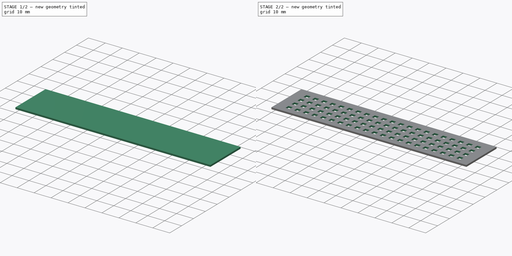
[diagram: build sequence overview — one tinted view per stage of 2, left to right]
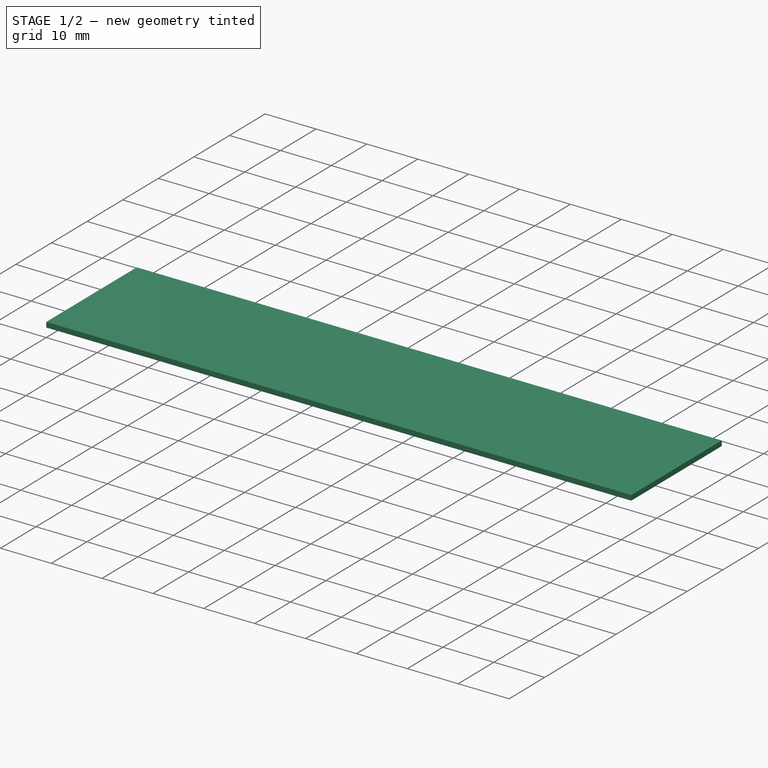
[diagram: stage 1 of 2 — iso view after this stage's code; geometry added in this stage tinted green]
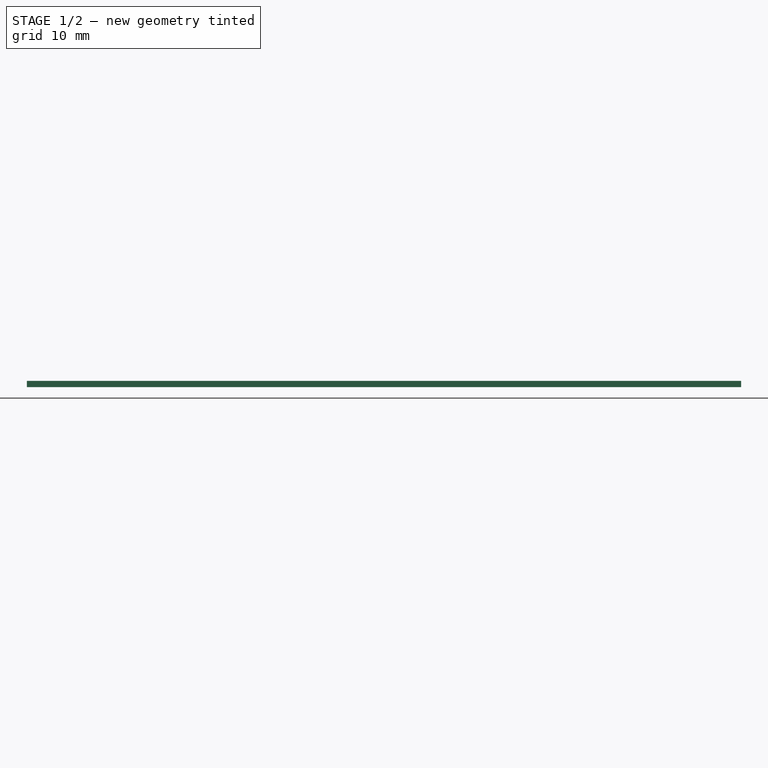
[diagram: stage 1 of 2 — front view after this stage's code; geometry added in this stage tinted green]
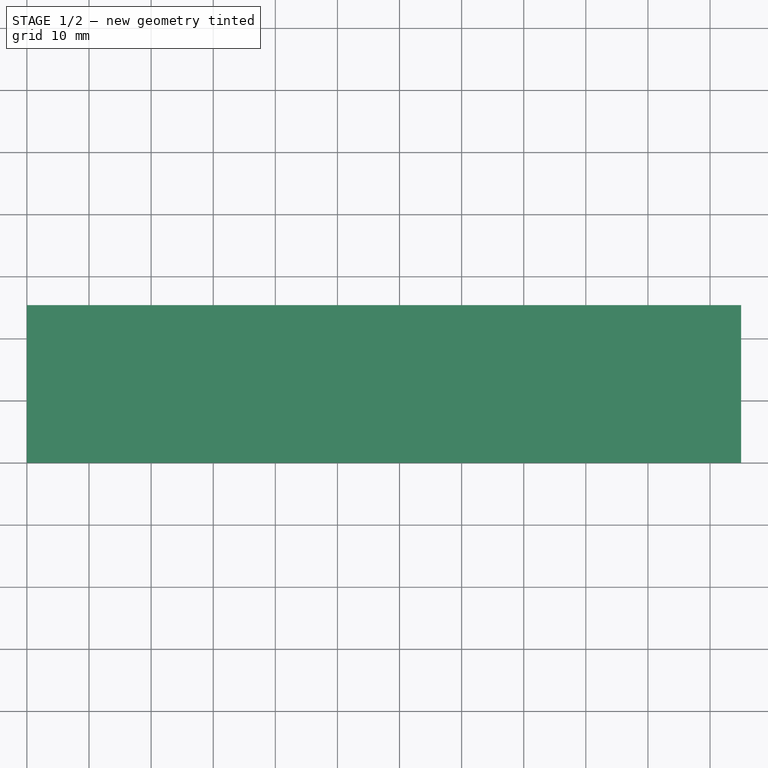
[diagram: stage 1 of 2 — top view after this stage's code; geometry added in this stage tinted green]
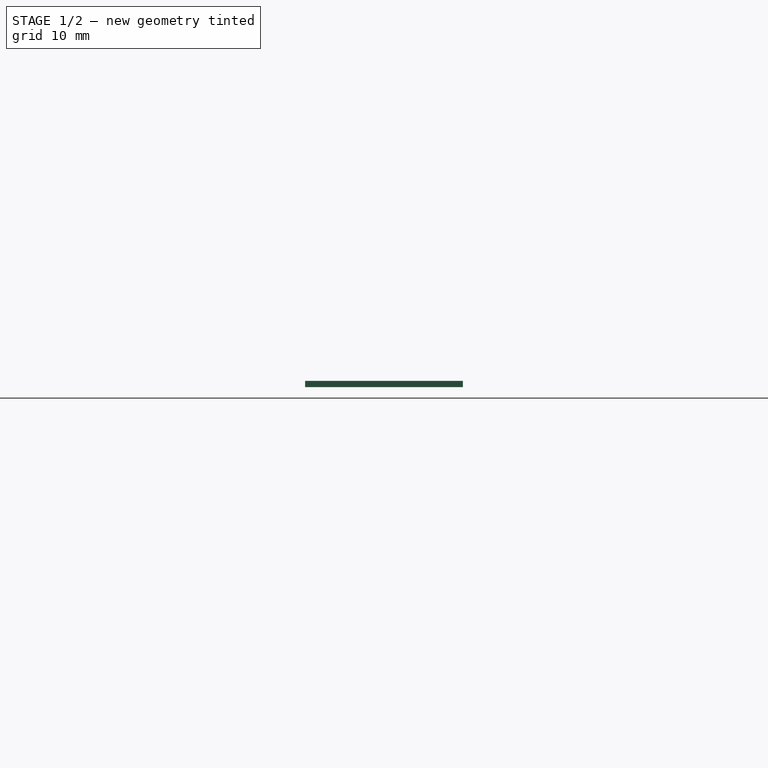
[diagram: stage 1 of 2 — right view after this stage's code; geometry added in this stage tinted green]
FCSTD DOCUMENT  (FreeCAD 0.17R13522 (Git))
Label: S1025
License: All rights reserved
LicenseURL: http://en.wikipedia.org/wiki/All_rights_reserved
objects: Part::Box×1, PartDesign::FeatureBase×1, Sketcher::SketchObject×1, PartDesign::Pocket×1, PartDesign::Body×1
note: 6 computed .brp shape members not serialized (recipe doc carries the construction recipe); baked Part::Feature solids carry a one-line shape summary decoded from their .brp

FEATURE [Part::Box] Box  label="Cube"
  AttacherType = Attacher::AttachEngine3D
  Height = 1
  Length = 115
  Width = 25.4
FEATURE [PartDesign::FeatureBase] BaseFeature
  BaseFeature = -> Box
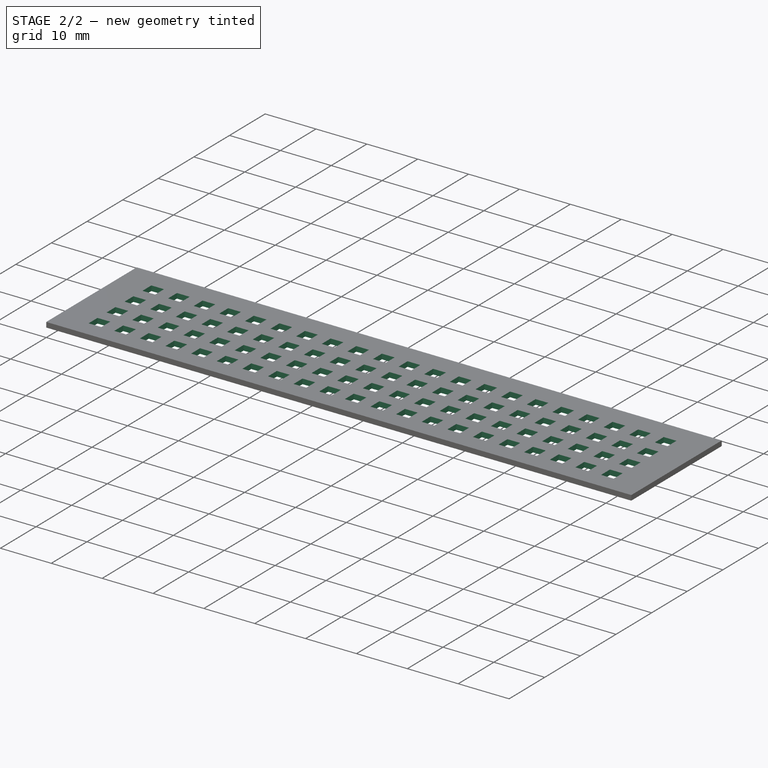
[diagram: stage 2 of 2 — iso view after this stage's code; geometry added in this stage tinted green]
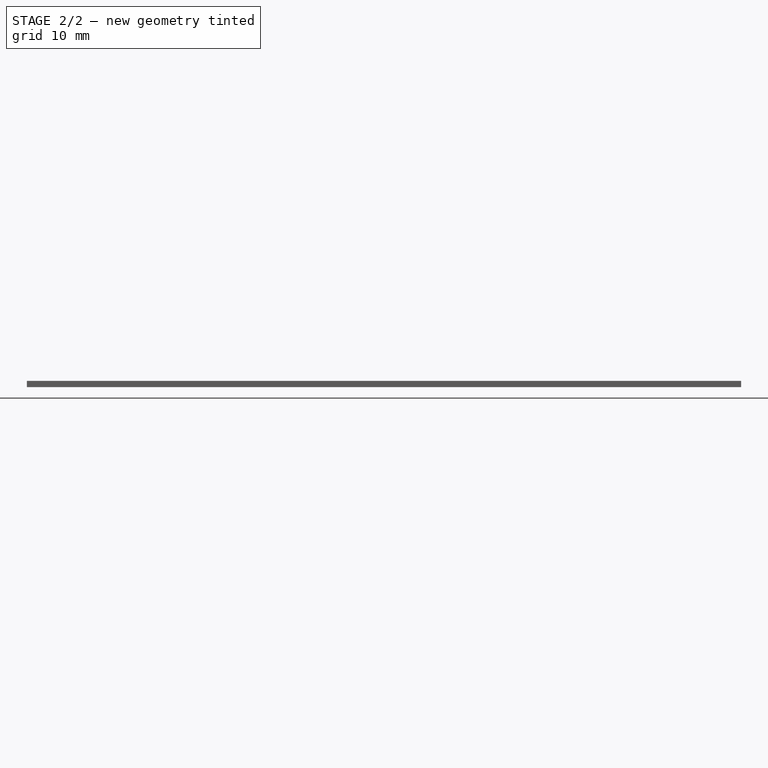
[diagram: stage 2 of 2 — front view after this stage's code; geometry added in this stage tinted green]
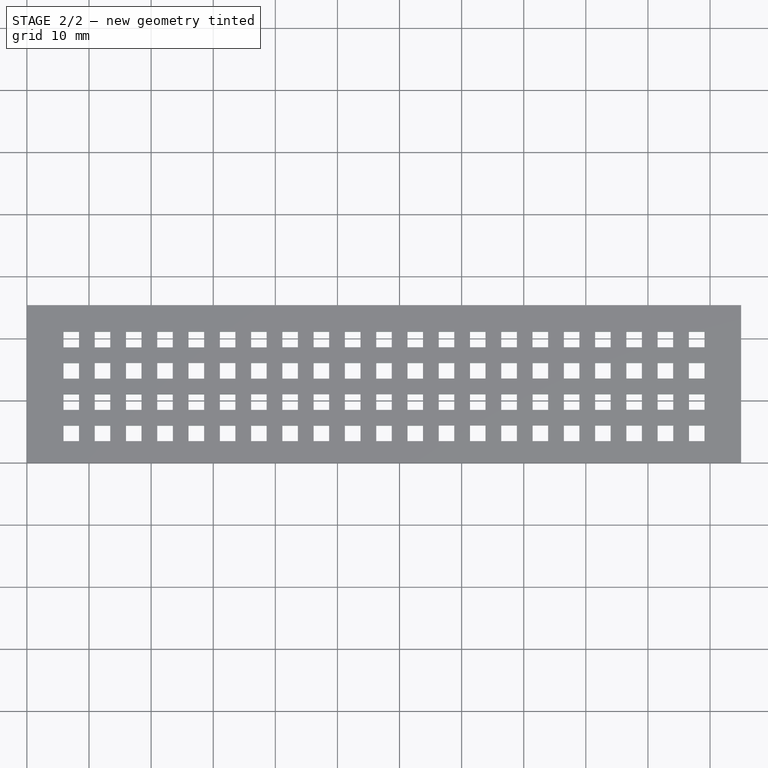
[diagram: stage 2 of 2 — top view after this stage's code; geometry added in this stage tinted green]
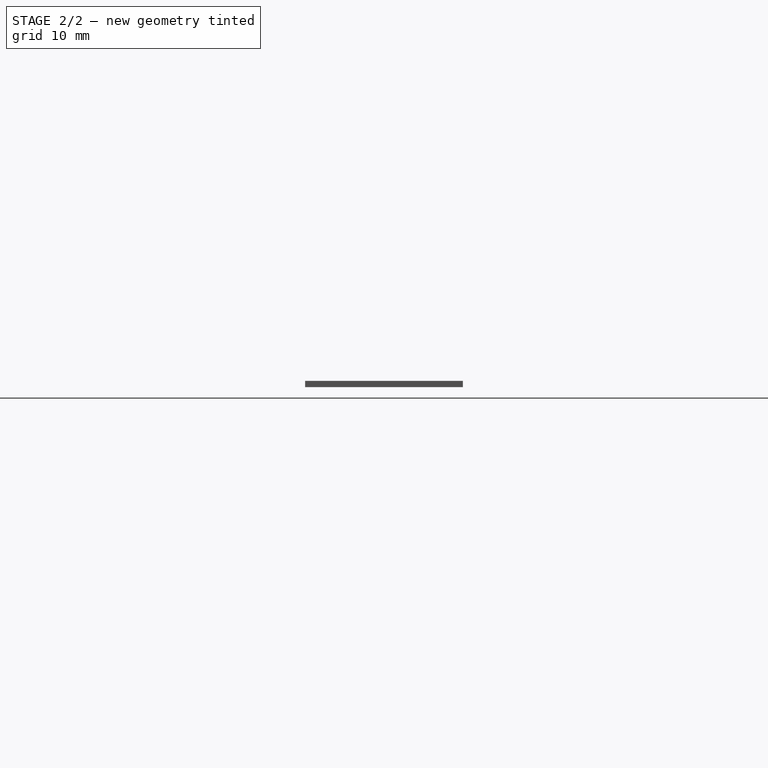
[diagram: stage 2 of 2 — right view after this stage's code; geometry added in this stage tinted green]
FEATURE [Sketcher::SketchObject] Sketch
  MapMode = 5
  Placement = pos=(0,0,1) rot=(0,0,1;0rad)
  Support = -> [BaseFeature]
  sketch-geometry (423):
    g0: LineSegment StartX=5.88559 StartY=21.0961 StartZ=0 EndX=8.38559 EndY=21.0961 EndZ=0
    g1: LineSegment StartX=8.38559 StartY=21.0961 StartZ=0 EndX=8.38559 EndY=18.5961 EndZ=0
    g2: LineSegment StartX=8.38559 StartY=18.5961 StartZ=0 EndX=5.88559 EndY=18.5961 EndZ=0
    g3: LineSegment StartX=5.88559 StartY=18.5961 StartZ=0 EndX=5.88559 EndY=21.0961 EndZ=0
    g4: LineSegment StartX=10.9213 StartY=21.0967 StartZ=0 EndX=13.4213 EndY=21.0967 EndZ=0
    g5: LineSegment StartX=13.4213 StartY=21.0967 StartZ=0 EndX=13.4213 EndY=18.5967 EndZ=0
    g6: LineSegment StartX=13.4213 StartY=18.5967 StartZ=0 EndX=10.9213 EndY=18.5967 EndZ=0
    g7: LineSegment StartX=10.9213 StartY=18.5967 StartZ=0 EndX=10.9213 EndY=21.0967 EndZ=0
    g8: LineSegment [constr] StartX=5.88559 StartY=21.0961 StartZ=0 EndX=10.9213 EndY=21.0967 EndZ=0
    g9: LineSegment StartX=15.9571 StartY=21.0973 StartZ=0 EndX=18.4571 EndY=21.0973 EndZ=0
    g10: LineSegment StartX=18.4571 StartY=21.0973 StartZ=0 EndX=18.4571 EndY=18.5973 EndZ=0
    g11: LineSegment StartX=18.4571 StartY=18.5973 StartZ=0 EndX=15.9571 EndY=18.5973 EndZ=0
    g12: LineSegment StartX=15.9571 StartY=18.5973 StartZ=0 EndX=15.9571 EndY=21.0973 EndZ=0
    g13: LineSegment [constr] StartX=10.9213 StartY=21.0967 StartZ=0 EndX=15.9571 EndY=21.0973 EndZ=0
    g14: LineSegment StartX=20.9928 StartY=21.0979 StartZ=0 EndX=23.4928 EndY=21.0979 EndZ=0
    g15: LineSegment StartX=23.4928 StartY=21.0979 StartZ=0 EndX=23.4928 EndY=18.5979 EndZ=0
    g16: LineSegment StartX=23.4928 StartY=18.5979 StartZ=0 EndX=20.9928 EndY=18.5979 EndZ=0
    g17: LineSegment StartX=20.9928 StartY=18.5979 StartZ=0 EndX=20.9928 EndY=21.0979 EndZ=0
    g18: LineSegment [constr] StartX=15.9571 StartY=21.0973 StartZ=0 EndX=20.9928 EndY=21.0979 EndZ=0
    g19: LineSegment StartX=26.0286 StartY=21.0984 StartZ=0 EndX=28.5286 EndY=21.0984 EndZ=0
    g20: LineSegment StartX=28.5286 StartY=21.0984 StartZ=0 EndX=28.5286 EndY=18.5984 EndZ=0
    g21: LineSegment StartX=28.5286 StartY=18.5984 StartZ=0 EndX=26.0286 EndY=18.5984 EndZ=0
    g22: LineSegment StartX=26.0286 StartY=18.5984 StartZ=0 EndX=26.0286 EndY=21.0984 EndZ=0
    g23: LineSegment [constr] StartX=20.9928 StartY=21.0979 StartZ=0 EndX=26.0286 EndY=21.0984 EndZ=0
    g24: LineSegment StartX=31.0643 StartY=21.099 StartZ=0 EndX=33.5643 EndY=21.099 EndZ=0
    g25: LineSegment StartX=33.5643 StartY=21.099 StartZ=0 EndX=33.5643 EndY=18.599 EndZ=0
    g26: LineSegment StartX=33.5643 StartY=18.599 StartZ=0 EndX=31.0643 EndY=18.599 EndZ=0
    g27: LineSegment StartX=31.0643 StartY=18.599 StartZ=0 EndX=31.0643 EndY=21.099 EndZ=0
    g28: LineSegment [constr] StartX=26.0286 StartY=21.0984 StartZ=0 EndX=31.0643 EndY=21.099 EndZ=0
    g29: LineSegment StartX=36.1001 StartY=21.0996 StartZ=0 EndX=38.6001 EndY=21.0996 EndZ=0
    g30: LineSegment StartX=38.6001 StartY=21.0996 StartZ=0 EndX=38.6001 EndY=18.5996 EndZ=0
    g31: LineSegment StartX=38.6001 StartY=18.5996 StartZ=0 EndX=36.1001 EndY=18.5996 EndZ=0
    g32: LineSegment StartX=36.1001 StartY=18.5996 StartZ=0 EndX=36.1001 EndY=21.0996 EndZ=0
    g33: LineSegment [constr] StartX=31.0643 StartY=21.099 StartZ=0 EndX=36.1001 EndY=21.0996 EndZ=0
    g34: LineSegment StartX=41.1359 StartY=21.1001 StartZ=0 EndX=43.6359 EndY=21.1001 EndZ=0
    g35: LineSegment StartX=43.6359 StartY=21.1001 StartZ=0 EndX=43.6359 EndY=18.6001 EndZ=0
    g36: LineSegment StartX=43.6359 StartY=18.6001 StartZ=0 EndX=41.1359 EndY=18.6001 EndZ=0
    g37: LineSegment StartX=41.1359 StartY=18.6001 StartZ=0 EndX=41.1359 EndY=21.1001 EndZ=0
    g38: LineSegment [constr] StartX=36.1001 StartY=21.0996 StartZ=0 EndX=41.1359 EndY=21.1001 EndZ=0
    g39: LineSegment StartX=46.1716 StartY=21.1007 StartZ=0 EndX=48.6716 EndY=21.1007 EndZ=0
    g40: LineSegment StartX=48.6716 StartY=21.1007 StartZ=0 EndX=48.6716 EndY=18.6007 EndZ=0
    g41: LineSegment StartX=48.6716 StartY=18.6007 StartZ=0 EndX=46.1716 EndY=18.6007 EndZ=0
    g42: LineSegment StartX=46.1716 StartY=18.6007 StartZ=0 EndX=46.1716 EndY=21.1007 EndZ=0
    g43: LineSegment [constr] StartX=41.1359 StartY=21.1001 StartZ=0 EndX=46.1716 EndY=21.1007 EndZ=0
    g44: LineSegment StartX=51.2074 StartY=21.1013 StartZ=0 EndX=53.7074 EndY=21.1013 EndZ=0
    g45: LineSegment StartX=53.7074 StartY=21.1013 StartZ=0 EndX=53.7074 EndY=18.6013 EndZ=0
    g46: LineSegment StartX=53.7074 StartY=18.6013 StartZ=0 EndX=51.2074 EndY=18.6013 EndZ=0
    g47: LineSegment StartX=51.2074 StartY=18.6013 StartZ=0 EndX=51.2074 EndY=21.1013 EndZ=0
    g48: LineSegment [constr] StartX=46.1716 StartY=21.1007 StartZ=0 EndX=51.2074 EndY=21.1013 EndZ=0
    g49: LineSegment StartX=56.2431 StartY=21.1018 StartZ=0 EndX=58.7431 EndY=21.1018 EndZ=0
    g50: LineSegment StartX=58.7431 StartY=21.1018 StartZ=0 EndX=58.7431 EndY=18.6018 EndZ=0
    g51: LineSegment StartX=58.7431 StartY=18.6018 StartZ=0 EndX=56.2431 EndY=18.6018 EndZ=0
    g52: LineSegment StartX=56.2431 StartY=18.6018 StartZ=0 EndX=56.2431 EndY=21.1018 EndZ=0
    g53: LineSegment [constr] StartX=51.2074 StartY=21.1013 StartZ=0 EndX=56.2431 EndY=21.1018 EndZ=0
    g54: LineSegment StartX=61.2789 StartY=21.1024 StartZ=0 EndX=63.7789 EndY=21.1024 EndZ=0
    g55: LineSegment StartX=63.7789 StartY=21.1024 StartZ=0 EndX=63.7789 EndY=18.6024 EndZ=0
    g56: LineSegment StartX=63.7789 StartY=18.6024 StartZ=0 EndX=61.2789 EndY=18.6024 EndZ=0
    g57: LineSegment StartX=61.2789 StartY=18.6024 StartZ=0 EndX=61.2789 EndY=21.1024 EndZ=0
    g58: LineSegment [constr] StartX=56.2431 StartY=21.1018 StartZ=0 EndX=61.2789 EndY=21.1024 EndZ=0
    g59: LineSegment StartX=66.3146 StartY=21.103 StartZ=0 EndX=68.8146 EndY=21.103 EndZ=0
    g60: LineSegment StartX=68.8146 StartY=21.103 StartZ=0 EndX=68.8146 EndY=18.603 EndZ=0
    g61: LineSegment StartX=68.8146 StartY=18.603 StartZ=0 EndX=66.3146 EndY=18.603 EndZ=0
    g62: LineSegment StartX=66.3146 StartY=18.603 StartZ=0 EndX=66.3146 EndY=21.103 EndZ=0
    g63: LineSegment [constr] StartX=61.2789 StartY=21.1024 StartZ=0 EndX=66.3146 EndY=21.103 EndZ=0
    g64: LineSegment StartX=71.3504 StartY=21.1035 StartZ=0 EndX=73.8504 EndY=21.1035 EndZ=0
    g65: LineSegment StartX=73.8504 StartY=21.1035 StartZ=0 EndX=73.8504 EndY=18.6035 EndZ=0
    g66: LineSegment StartX=73.8504 StartY=18.6035 StartZ=0 EndX=71.3504 EndY=18.6035 EndZ=0
    g67: LineSegment StartX=71.3504 StartY=18.6035 StartZ=0 EndX=71.3504 EndY=21.1035 EndZ=0
    g68: LineSegment [constr] StartX=66.3146 StartY=21.103 StartZ=0 EndX=71.3504 EndY=21.1035 EndZ=0
    g69: LineSegment StartX=76.3861 StartY=21.1041 StartZ=0 EndX=78.8861 EndY=21.1041 EndZ=0
    g70: LineSegment StartX=78.8861 StartY=21.1041 StartZ=0 EndX=78.8861 EndY=18.6041 EndZ=0
    g71: LineSegment StartX=78.8861 StartY=18.6041 StartZ=0 EndX=76.3861 EndY=18.6041 EndZ=0
    g72: LineSegment StartX=76.3861 StartY=18.6041 StartZ=0 EndX=76.3861 EndY=21.1041 EndZ=0
    g73: LineSegment [constr] StartX=71.3504 StartY=21.1035 StartZ=0 EndX=76.3861 EndY=21.1041 EndZ=0
    g74: LineSegment StartX=81.4219 StartY=21.1047 StartZ=0 EndX=83.9219 EndY=21.1047 EndZ=0
    g75: LineSegment StartX=83.9219 StartY=21.1047 StartZ=0 EndX=83.9219 EndY=18.6047 EndZ=0
    g76: LineSegment StartX=83.9219 StartY=18.6047 StartZ=0 EndX=81.4219 EndY=18.6047 EndZ=0
    g77: LineSegment StartX=81.4219 StartY=18.6047 StartZ=0 EndX=81.4219 EndY=21.1047 EndZ=0
    g78: LineSegment [constr] StartX=76.3861 StartY=21.1041 StartZ=0 EndX=81.4219 EndY=21.1047 EndZ=0
    g79: LineSegment StartX=86.4576 StartY=21.1052 StartZ=0 EndX=88.9576 EndY=21.1052 EndZ=0
    g80: LineSegment StartX=88.9576 StartY=21.1052 StartZ=0 EndX=88.9576 EndY=18.6052 EndZ=0
    g81: LineSegment StartX=88.9576 StartY=18.6052 StartZ=0 EndX=86.4576 EndY=18.6052 EndZ=0
    g82: LineSegment StartX=86.4576 StartY=18.6052 StartZ=0 EndX=86.4576 EndY=21.1052 EndZ=0
    g83: LineSegment [constr] StartX=81.4219 StartY=21.1047 StartZ=0 EndX=86.4576 EndY=21.1052 EndZ=0
    g84: LineSegment StartX=91.4934 StartY=21.1058 StartZ=0 EndX=93.9934 EndY=21.1058 EndZ=0
    g85: LineSegment StartX=93.9934 StartY=21.1058 StartZ=0 EndX=93.9934 EndY=18.6058 EndZ=0
    g86: LineSegment StartX=93.9934 StartY=18.6058 StartZ=0 EndX=91.4934 EndY=18.6058 EndZ=0
    g87: LineSegment StartX=91.4934 StartY=18.6058 StartZ=0 EndX=91.4934 EndY=21.1058 EndZ=0
    g88: LineSegment [constr] StartX=86.4576 StartY=21.1052 StartZ=0 EndX=91.4934 EndY=21.1058 EndZ=0
    g89: LineSegment StartX=96.5291 StartY=21.1064 StartZ=0 EndX=99.0291 EndY=21.1064 EndZ=0
    g90: LineSegment StartX=99.0291 StartY=21.1064 StartZ=0 EndX=99.0291 EndY=18.6064 EndZ=0
    g91: LineSegment StartX=99.0291 StartY=18.6064 StartZ=0 EndX=96.5291 EndY=18.6064 EndZ=0
    g92: LineSegment StartX=96.5291 StartY=18.6064 StartZ=0 EndX=96.5291 EndY=21.1064 EndZ=0
    g93: LineSegment [constr] StartX=91.4934 StartY=21.1058 StartZ=0 EndX=96.5291 EndY=21.1064 EndZ=0
    g94: LineSegment StartX=101.565 StartY=21.1069 StartZ=0 EndX=104.065 EndY=21.1069 EndZ=0
    g95: LineSegment StartX=104.065 StartY=21.1069 StartZ=0 EndX=104.065 EndY=18.6069 EndZ=0
    g96: LineSegment StartX=104.065 StartY=18.6069 StartZ=0 EndX=101.565 EndY=18.6069 EndZ=0
    g97: LineSegment StartX=101.565 StartY=18.6069 StartZ=0 EndX=101.565 EndY=21.1069 EndZ=0
    g98: LineSegment [constr] StartX=96.5291 StartY=21.1064 StartZ=0 EndX=101.565 EndY=21.1069 EndZ=0
    g99: LineSegment StartX=106.601 StartY=21.1075 StartZ=0 EndX=109.101 EndY=21.1075 EndZ=0
    g100: LineSegment StartX=109.101 StartY=21.1075 StartZ=0 EndX=109.101 EndY=18.6075 EndZ=0
    g101: LineSegment StartX=109.101 StartY=18.6075 StartZ=0 EndX=106.601 EndY=18.6075 EndZ=0
    g102: LineSegment StartX=106.601 StartY=18.6075 StartZ=0 EndX=106.601 EndY=21.1075 EndZ=0
    g103: LineSegment [constr] StartX=101.565 StartY=21.1069 StartZ=0 EndX=106.601 EndY=21.1075 EndZ=0
    g104: LineSegment [constr] StartX=106.601 StartY=21.1075 StartZ=0 EndX=111.636 EndY=21.1081 EndZ=0
    g105: LineSegment StartX=5.88616 StartY=16.0604 StartZ=0 EndX=8.38616 EndY=16.0604 EndZ=0
    g106: LineSegment StartX=8.38616 StartY=16.0604 StartZ=0 EndX=8.38616 EndY=13.5604 EndZ=0
    g107: LineSegment StartX=8.38616 StartY=13.5604 StartZ=0 EndX=5.88616 EndY=13.5604 EndZ=0
    g108: LineSegment StartX=5.88616 StartY=13.5604 StartZ=0 EndX=5.88616 EndY=16.0604 EndZ=0
    g109: LineSegment [constr] StartX=5.88559 StartY=21.0961 StartZ=0 EndX=5.88616 EndY=16.0604 EndZ=0
    g110: LineSegment StartX=10.9219 StartY=16.061 StartZ=0 EndX=13.4219 EndY=16.061 EndZ=0
    g111: LineSegment StartX=13.4219 StartY=16.061 StartZ=0 EndX=13.4219 EndY=13.561 EndZ=0
    g112: LineSegment StartX=13.4219 StartY=13.561 StartZ=0 EndX=10.9219 EndY=13.561 EndZ=0
    g113: LineSegment StartX=10.9219 StartY=13.561 StartZ=0 EndX=10.9219 EndY=16.061 EndZ=0
    g114: LineSegment [constr] StartX=5.88616 StartY=16.0604 StartZ=0 EndX=10.9219 EndY=16.061 EndZ=0
    g115: LineSegment StartX=15.9577 StartY=16.0615 StartZ=0 EndX=18.4577 EndY=16.0615 EndZ=0
    g116: LineSegment StartX=18.4577 StartY=16.0615 StartZ=0 EndX=18.4577 EndY=13.5615 EndZ=0
    g117: LineSegment StartX=18.4577 StartY=13.5615 StartZ=0 EndX=15.9577 EndY=13.5615 EndZ=0
    g118: LineSegment StartX=15.9577 StartY=13.5615 StartZ=0 EndX=15.9577 EndY=16.0615 EndZ=0
    g119: LineSegment [constr] StartX=10.9219 StartY=16.061 StartZ=0 EndX=15.9577 EndY=16.0615 EndZ=0
    g120: LineSegment StartX=20.9934 StartY=16.0621 StartZ=0 EndX=23.4934 EndY=16.0621 EndZ=0
    g121: LineSegment StartX=23.4934 StartY=16.0621 StartZ=0 EndX=23.4934 EndY=13.5621 EndZ=0
    g122: LineSegment StartX=23.4934 StartY=13.5621 StartZ=0 EndX=20.9934 EndY=13.5621 EndZ=0
    g123: LineSegment StartX=20.9934 StartY=13.5621 StartZ=0 EndX=20.9934 EndY=16.0621 EndZ=0
    g124: LineSegment [constr] StartX=15.9577 StartY=16.0615 StartZ=0 EndX=20.9934 EndY=16.0621 EndZ=0
    g125: LineSegment StartX=26.0292 StartY=16.0627 StartZ=0 EndX=28.5292 EndY=16.0627 EndZ=0
    g126: LineSegment StartX=28.5292 StartY=16.0627 StartZ=0 EndX=28.5292 EndY=13.5627 EndZ=0
    g127: LineSegment StartX=28.5292 StartY=13.5627 StartZ=0 EndX=26.0292 EndY=13.5627 EndZ=0
    g128: LineSegment StartX=26.0292 StartY=13.5627 StartZ=0 EndX=26.0292 EndY=16.0627 EndZ=0
    g129: LineSegment [constr] StartX=20.9934 StartY=16.0621 StartZ=0 EndX=26.0292 EndY=16.0627 EndZ=0
    g130: LineSegment StartX=31.0649 StartY=16.0632 StartZ=0 EndX=33.5649 EndY=16.0632 EndZ=0
    g131: LineSegment StartX=33.5649 StartY=16.0632 StartZ=0 EndX=33.5649 EndY=13.5632 EndZ=0
    g132: LineSegment StartX=33.5649 StartY=13.5632 StartZ=0 EndX=31.0649 EndY=13.5632 EndZ=0
    g133: LineSegment StartX=31.0649 StartY=13.5632 StartZ=0 EndX=31.0649 EndY=16.0632 EndZ=0
    g134: LineSegment [constr] StartX=26.0292 StartY=16.0627 StartZ=0 EndX=31.0649 EndY=16.0632 EndZ=0
    g135: LineSegment StartX=36.1007 StartY=16.0638 StartZ=0 EndX=38.6007 EndY=16.0638 EndZ=0
    g136: LineSegment StartX=38.6007 StartY=16.0638 StartZ=0 EndX=38.6007 EndY=13.5638 EndZ=0
    g137: LineSegment StartX=38.6007 StartY=13.5638 StartZ=0 EndX=36.1007 EndY=13.5638 EndZ=0
    g138: LineSegment StartX=36.1007 StartY=13.5638 StartZ=0 EndX=36.1007 EndY=16.0638 EndZ=0
    g139: LineSegment [constr] StartX=31.0649 StartY=16.0632 StartZ=0 EndX=36.1007 EndY=16.0638 EndZ=0
    g140: LineSegment StartX=41.1364 StartY=16.0644 StartZ=0 EndX=43.6364 EndY=16.0644 EndZ=0
    g141: LineSegment StartX=43.6364 StartY=16.0644 StartZ=0 EndX=43.6364 EndY=13.5644 EndZ=0
    g142: LineSegment StartX=43.6364 StartY=13.5644 StartZ=0 EndX=41.1364 EndY=13.5644 EndZ=0
    g143: LineSegment StartX=41.1364 StartY=13.5644 StartZ=0 EndX=41.1364 EndY=16.0644 EndZ=0
    g144: LineSegment [constr] StartX=36.1007 StartY=16.0638 StartZ=0 EndX=41.1364 EndY=16.0644 EndZ=0
    g145: LineSegment StartX=46.1722 StartY=16.0649 StartZ=0 EndX=48.6722 EndY=16.0649 EndZ=0
    g146: LineSegment StartX=48.6722 StartY=16.0649 StartZ=0 EndX=48.6722 EndY=13.5649 EndZ=0
    g147: LineSegment StartX=48.6722 StartY=13.5649 StartZ=0 EndX=46.1722 EndY=13.5649 EndZ=0
    g148: LineSegment StartX=46.1722 StartY=13.5649 StartZ=0 EndX=46.1722 EndY=16.0649 EndZ=0
    g149: LineSegment [constr] StartX=41.1364 StartY=16.0644 StartZ=0 EndX=46.1722 EndY=16.0649 EndZ=0
    g150: LineSegment StartX=51.2079 StartY=16.0655 StartZ=0 EndX=53.7079 EndY=16.0655 EndZ=0
    g151: LineSegment StartX=53.7079 StartY=16.0655 StartZ=0 EndX=53.7079 EndY=13.5655 EndZ=0
    g152: LineSegment StartX=53.7079 StartY=13.5655 StartZ=0 EndX=51.2079 EndY=13.5655 EndZ=0
    g153: LineSegment StartX=51.2079 StartY=13.5655 StartZ=0 EndX=51.2079 EndY=16.0655 EndZ=0
    g154: LineSegment [constr] StartX=46.1722 StartY=16.0649 StartZ=0 EndX=51.2079 EndY=16.0655 EndZ=0
    g155: LineSegment StartX=56.2437 StartY=16.0661 StartZ=0 EndX=58.7437 EndY=16.0661 EndZ=0
    g156: LineSegment StartX=58.7437 StartY=16.0661 StartZ=0 EndX=58.7437 EndY=13.5661 EndZ=0
    g157: LineSegment StartX=58.7437 StartY=13.5661 StartZ=0 EndX=56.2437 EndY=13.5661 EndZ=0
    g158: LineSegment StartX=56.2437 StartY=13.5661 StartZ=0 EndX=56.2437 EndY=16.0661 EndZ=0
    g159: LineSegment [constr] StartX=51.2079 StartY=16.0655 StartZ=0 EndX=56.2437 EndY=16.0661 EndZ=0
    g160: LineSegment StartX=61.2794 StartY=16.0666 StartZ=0 EndX=63.7794 EndY=16.0666 EndZ=0
    g161: LineSegment StartX=63.7794 StartY=16.0666 StartZ=0 EndX=63.7794 EndY=13.5666 EndZ=0
    g162: LineSegment StartX=63.7794 StartY=13.5666 StartZ=0 EndX=61.2794 EndY=13.5666 EndZ=0
    g163: LineSegment StartX=61.2794 StartY=13.5666 StartZ=0 EndX=61.2794 EndY=16.0666 EndZ=0
    g164: LineSegment [constr] StartX=56.2437 StartY=16.0661 StartZ=0 EndX=61.2794 EndY=16.0666 EndZ=0
    g165: LineSegment StartX=66.3152 StartY=16.0672 StartZ=0 EndX=68.8152 EndY=16.0672 EndZ=0
    g166: LineSegment StartX=68.8152 StartY=16.0672 StartZ=0 EndX=68.8152 EndY=13.5672 EndZ=0
    g167: LineSegment StartX=68.8152 StartY=13.5672 StartZ=0 EndX=66.3152 EndY=13.5672 EndZ=0
    g168: LineSegment StartX=66.3152 StartY=13.5672 StartZ=0 EndX=66.3152 EndY=16.0672 EndZ=0
    g169: LineSegment [constr] StartX=61.2794 StartY=16.0666 StartZ=0 EndX=66.3152 EndY=16.0672 EndZ=0
    g170: LineSegment StartX=71.3509 StartY=16.0678 StartZ=0 EndX=73.8509 EndY=16.0678 EndZ=0
    g171: LineSegment StartX=73.8509 StartY=16.0678 StartZ=0 EndX=73.8509 EndY=13.5678 EndZ=0
    g172: LineSegment StartX=73.8509 StartY=13.5678 StartZ=0 EndX=71.3509 EndY=13.5678 EndZ=0
    g173: LineSegment StartX=71.3509 StartY=13.5678 StartZ=0 EndX=71.3509 EndY=16.0678 EndZ=0
    g174: LineSegment [constr] StartX=66.3152 StartY=16.0672 StartZ=0 EndX=71.3509 EndY=16.0678 EndZ=0
    g175: LineSegment StartX=76.3867 StartY=16.0683 StartZ=0 EndX=78.8867 EndY=16.0683 EndZ=0
    g176: LineSegment StartX=78.8867 StartY=16.0683 StartZ=0 EndX=78.8867 EndY=13.5683 EndZ=0
    g177: LineSegment StartX=78.8867 StartY=13.5683 StartZ=0 EndX=76.3867 EndY=13.5683 EndZ=0
    g178: LineSegment StartX=76.3867 StartY=13.5683 StartZ=0 EndX=76.3867 EndY=16.0683 EndZ=0
    g179: LineSegment [constr] StartX=71.3509 StartY=16.0678 StartZ=0 EndX=76.3867 EndY=16.0683 EndZ=0
    g180: LineSegment StartX=81.4224 StartY=16.0689 StartZ=0 EndX=83.9224 EndY=16.0689 EndZ=0
    g181: LineSegment StartX=83.9224 StartY=16.0689 StartZ=0 EndX=83.9224 EndY=13.5689 EndZ=0
    g182: LineSegment StartX=83.9224 StartY=13.5689 StartZ=0 EndX=81.4224 EndY=13.5689 EndZ=0
    g183: LineSegment StartX=81.4224 StartY=13.5689 StartZ=0 EndX=81.4224 EndY=16.0689 EndZ=0
    g184: LineSegment [constr] StartX=76.3867 StartY=16.0683 StartZ=0 EndX=81.4224 EndY=16.0689 EndZ=0
    g185: LineSegment StartX=86.4582 StartY=16.0695 StartZ=0 EndX=88.9582 EndY=16.0695 EndZ=0
    g186: LineSegment StartX=88.9582 StartY=16.0695 StartZ=0 EndX=88.9582 EndY=13.5695 EndZ=0
    g187: LineSegment StartX=88.9582 StartY=13.5695 StartZ=0 EndX=86.4582 EndY=13.5695 EndZ=0
    g188: LineSegment StartX=86.4582 StartY=13.5695 StartZ=0 EndX=86.4582 EndY=16.0695 EndZ=0
    g189: LineSegment [constr] StartX=81.4224 StartY=16.0689 StartZ=0 EndX=86.4582 EndY=16.0695 EndZ=0
    g190: LineSegment StartX=91.4939 StartY=16.0701 StartZ=0 EndX=93.9939 EndY=16.0701 EndZ=0
    g191: LineSegment StartX=93.9939 StartY=16.0701 StartZ=0 EndX=93.9939 EndY=13.5701 EndZ=0
    g192: LineSegment StartX=93.9939 StartY=13.5701 StartZ=0 EndX=91.4939 EndY=13.5701 EndZ=0
    g193: LineSegment StartX=91.4939 StartY=13.5701 StartZ=0 EndX=91.4939 EndY=16.0701 EndZ=0
    g194: LineSegment [constr] StartX=86.4582 StartY=16.0695 StartZ=0 EndX=91.4939 EndY=16.0701 EndZ=0
    g195: LineSegment StartX=96.5297 StartY=16.0706 StartZ=0 EndX=99.0297 EndY=16.0706 EndZ=0
    g196: LineSegment StartX=99.0297 StartY=16.0706 StartZ=0 EndX=99.0297 EndY=13.5706 EndZ=0
    g197: LineSegment StartX=99.0297 StartY=13.5706 StartZ=0 EndX=96.5297 EndY=13.5706 EndZ=0
    g198: LineSegment StartX=96.5297 StartY=13.5706 StartZ=0 EndX=96.5297 EndY=16.0706 EndZ=0
    g199: LineSegment [constr] StartX=91.4939 StartY=16.0701 StartZ=0 EndX=96.5297 EndY=16.0706 EndZ=0
    g200: LineSegment StartX=101.565 StartY=16.0712 StartZ=0 EndX=104.065 EndY=16.0712 EndZ=0
    g201: LineSegment StartX=104.065 StartY=16.0712 StartZ=0 EndX=104.065 EndY=13.5712 EndZ=0
    g202: LineSegment StartX=104.065 StartY=13.5712 StartZ=0 EndX=101.565 EndY=13.5712 EndZ=0
    g203: LineSegment StartX=101.565 StartY=13.5712 StartZ=0 EndX=101.565 EndY=16.0712 EndZ=0
    g204: LineSegment [constr] StartX=96.5297 StartY=16.0706 StartZ=0 EndX=101.565 EndY=16.0712 EndZ=0
    g205: LineSegment StartX=106.601 StartY=16.0718 StartZ=0 EndX=109.101 EndY=16.0718 EndZ=0
    g206: LineSegment StartX=109.101 StartY=16.0718 StartZ=0 EndX=109.101 EndY=13.5718 EndZ=0
    g207: LineSegment StartX=109.101 StartY=13.5718 StartZ=0 EndX=106.601 EndY=13.5718 EndZ=0
    g208: LineSegment StartX=106.601 StartY=13.5718 StartZ=0 EndX=106.601 EndY=16.0718 EndZ=0
    g209: LineSegment [constr] StartX=101.565 StartY=16.0712 StartZ=0 EndX=106.601 EndY=16.0718 EndZ=0
    g210: LineSegment [constr] StartX=106.601 StartY=16.0718 StartZ=0 EndX=111.637 EndY=16.0723 EndZ=0
    g211: LineSegment StartX=5.88673 StartY=11.0246 StartZ=0 EndX=8.38673 EndY=11.0246 EndZ=0
    g212: LineSegment StartX=8.38673 StartY=11.0246 StartZ=0 EndX=8.38673 EndY=8.52465 EndZ=0
    g213: LineSegment StartX=8.38673 StartY=8.52465 StartZ=0 EndX=5.88673 EndY=8.52465 EndZ=0
    g214: LineSegment StartX=5.88673 StartY=8.52465 StartZ=0 EndX=5.88673 EndY=11.0246 EndZ=0
    g215: LineSegment [constr] StartX=5.88616 StartY=16.0604 StartZ=0 EndX=5.88673 EndY=11.0246 EndZ=0
    g216: LineSegment StartX=10.9225 StartY=11.0252 StartZ=0 EndX=13.4225 EndY=11.0252 EndZ=0
    g217: LineSegment StartX=13.4225 StartY=11.0252 StartZ=0 EndX=13.4225 EndY=8.52521 EndZ=0
    g218: LineSegment StartX=13.4225 StartY=8.52521 StartZ=0 EndX=10.9225 EndY=8.52521 EndZ=0
    g219: LineSegment StartX=10.9225 StartY=8.52521 StartZ=0 EndX=10.9225 EndY=11.0252 EndZ=0
    g220: LineSegment [constr] StartX=5.88673 StartY=11.0246 StartZ=0 EndX=10.9225 EndY=11.0252 EndZ=0
    g221: LineSegment StartX=15.9582 StartY=11.0258 StartZ=0 EndX=18.4582 EndY=11.0258 EndZ=0
    g222: LineSegment StartX=18.4582 StartY=11.0258 StartZ=0 EndX=18.4582 EndY=8.52578 EndZ=0
    g223: LineSegment StartX=18.4582 StartY=8.52578 StartZ=0 EndX=15.9582 EndY=8.52578 EndZ=0
    g224: LineSegment StartX=15.9582 StartY=8.52578 StartZ=0 EndX=15.9582 EndY=11.0258 EndZ=0
    g225: LineSegment [constr] StartX=10.9225 StartY=11.0252 StartZ=0 EndX=15.9582 EndY=11.0258 EndZ=0
    g226: LineSegment StartX=20.994 StartY=11.0264 StartZ=0 EndX=23.494 EndY=11.0264 EndZ=0
    g227: LineSegment StartX=23.494 StartY=11.0264 StartZ=0 EndX=23.494 EndY=8.52635 EndZ=0
    g228: LineSegment StartX=23.494 StartY=8.52635 StartZ=0 EndX=20.994 EndY=8.52635 EndZ=0
    g229: LineSegment StartX=20.994 StartY=8.52635 StartZ=0 EndX=20.994 EndY=11.0264 EndZ=0
    g230: LineSegment [constr] StartX=15.9582 StartY=11.0258 StartZ=0 EndX=20.994 EndY=11.0264 EndZ=0
    g231: LineSegment StartX=26.0297 StartY=11.0269 StartZ=0 EndX=28.5297 EndY=11.0269 EndZ=0
    g232: LineSegment StartX=28.5297 StartY=11.0269 StartZ=0 EndX=28.5297 EndY=8.52692 EndZ=0
    g233: LineSegment StartX=28.5297 StartY=8.52692 StartZ=0 EndX=26.0297 EndY=8.52692 EndZ=0
    g234: LineSegment StartX=26.0297 StartY=8.52692 StartZ=0 EndX=26.0297 EndY=11.0269 EndZ=0
    g235: LineSegment [constr] StartX=20.994 StartY=11.0264 StartZ=0 EndX=26.0297 EndY=11.0269 EndZ=0
    g236: LineSegment StartX=31.0655 StartY=11.0275 StartZ=0 EndX=33.5655 EndY=11.0275 EndZ=0
    g237: LineSegment StartX=33.5655 StartY=11.0275 StartZ=0 EndX=33.5655 EndY=8.52749 EndZ=0
    g238: LineSegment StartX=33.5655 StartY=8.52749 StartZ=0 EndX=31.0655 EndY=8.52749 EndZ=0
    g239: LineSegment StartX=31.0655 StartY=8.52749 StartZ=0 EndX=31.0655 EndY=11.0275 EndZ=0
    g240: LineSegment [constr] StartX=26.0297 StartY=11.0269 StartZ=0 EndX=31.0655 EndY=11.0275 EndZ=0
    g241: LineSegment StartX=36.1012 StartY=11.0281 StartZ=0 EndX=38.6012 EndY=11.0281 EndZ=0
    g242: LineSegment StartX=38.6012 StartY=11.0281 StartZ=0 EndX=38.6012 EndY=8.52805 EndZ=0
    g243: LineSegment StartX=38.6012 StartY=8.52805 StartZ=0 EndX=36.1012 EndY=8.52805 EndZ=0
    g244: LineSegment StartX=36.1012 StartY=8.52805 StartZ=0 EndX=36.1012 EndY=11.0281 EndZ=0
    g245: LineSegment [constr] StartX=31.0655 StartY=11.0275 StartZ=0 EndX=36.1012 EndY=11.0281 EndZ=0
    g246: LineSegment StartX=41.137 StartY=11.0286 StartZ=0 EndX=43.637 EndY=11.0286 EndZ=0
    g247: LineSegment StartX=43.637 StartY=11.0286 StartZ=0 EndX=43.637 EndY=8.52862 EndZ=0
    g248: LineSegment StartX=43.637 StartY=8.52862 StartZ=0 EndX=41.137 EndY=8.52862 EndZ=0
    g249: LineSegment StartX=41.137 StartY=8.52862 StartZ=0 EndX=41.137 EndY=11.0286 EndZ=0
    g250: LineSegment [constr] StartX=36.1012 StartY=11.0281 StartZ=0 EndX=41.137 EndY=11.0286 EndZ=0
    g251: LineSegment StartX=46.1727 StartY=11.0292 StartZ=0 EndX=48.6727 EndY=11.0292 EndZ=0
    g252: LineSegment StartX=48.6727 StartY=11.0292 StartZ=0 EndX=48.6727 EndY=8.52919 EndZ=0
    g253: LineSegment StartX=48.6727 StartY=8.52919 StartZ=0 EndX=46.1727 EndY=8.52919 EndZ=0
    g254: LineSegment StartX=46.1727 StartY=8.52919 StartZ=0 EndX=46.1727 EndY=11.0292 EndZ=0
    g255: LineSegment [constr] StartX=41.137 StartY=11.0286 StartZ=0 EndX=46.1727 EndY=11.0292 EndZ=0
    g256: LineSegment StartX=51.2085 StartY=11.0298 StartZ=0 EndX=53.7085 EndY=11.0298 EndZ=0
    g257: LineSegment StartX=53.7085 StartY=11.0298 StartZ=0 EndX=53.7085 EndY=8.52976 EndZ=0
    g258: LineSegment StartX=53.7085 StartY=8.52976 StartZ=0 EndX=51.2085 EndY=8.52976 EndZ=0
    g259: LineSegment StartX=51.2085 StartY=8.52976 StartZ=0 EndX=51.2085 EndY=11.0298 EndZ=0
    g260: LineSegment [constr] StartX=46.1727 StartY=11.0292 StartZ=0 EndX=51.2085 EndY=11.0298 EndZ=0
    g261: LineSegment StartX=56.2442 StartY=11.0303 StartZ=0 EndX=58.7442 EndY=11.0303 EndZ=0
    g262: LineSegment StartX=58.7442 StartY=11.0303 StartZ=0 EndX=58.7442 EndY=8.53033 EndZ=0
    g263: LineSegment StartX=58.7442 StartY=8.53033 StartZ=0 EndX=56.2442 EndY=8.53033 EndZ=0
    g264: LineSegment StartX=56.2442 StartY=8.53033 StartZ=0 EndX=56.2442 EndY=11.0303 EndZ=0
    g265: LineSegment [constr] StartX=51.2085 StartY=11.0298 StartZ=0 EndX=56.2442 EndY=11.0303 EndZ=0
    g266: LineSegment StartX=61.28 StartY=11.0309 StartZ=0 EndX=63.78 EndY=11.0309 EndZ=0
    g267: LineSegment StartX=63.78 StartY=11.0309 StartZ=0 EndX=63.78 EndY=8.53089 EndZ=0
    g268: LineSegment StartX=63.78 StartY=8.53089 StartZ=0 EndX=61.28 EndY=8.53089 EndZ=0
    g269: LineSegment StartX=61.28 StartY=8.53089 StartZ=0 EndX=61.28 EndY=11.0309 EndZ=0
    g270: LineSegment [constr] StartX=56.2442 StartY=11.0303 StartZ=0 EndX=61.28 EndY=11.0309 EndZ=0
    g271: LineSegment StartX=66.3157 StartY=11.0315 StartZ=0 EndX=68.8157 EndY=11.0315 EndZ=0
    g272: LineSegment StartX=68.8157 StartY=11.0315 StartZ=0 EndX=68.8157 EndY=8.53146 EndZ=0
    g273: LineSegment StartX=68.8157 StartY=8.53146 StartZ=0 EndX=66.3157 EndY=8.53146 EndZ=0
    g274: LineSegment StartX=66.3157 StartY=8.53146 StartZ=0 EndX=66.3157 EndY=11.0315 EndZ=0
    g275: LineSegment [constr] StartX=61.28 StartY=11.0309 StartZ=0 EndX=66.3157 EndY=11.0315 EndZ=0
    g276: LineSegment StartX=71.3515 StartY=11.032 StartZ=0 EndX=73.8515 EndY=11.032 EndZ=0
    g277: LineSegment StartX=73.8515 StartY=11.032 StartZ=0 EndX=73.8515 EndY=8.53203 EndZ=0
    g278: LineSegment StartX=73.8515 StartY=8.53203 StartZ=0 EndX=71.3515 EndY=8.53203 EndZ=0
    g279: LineSegment StartX=71.3515 StartY=8.53203 StartZ=0 EndX=71.3515 EndY=11.032 EndZ=0
    g280: LineSegment [constr] StartX=66.3157 StartY=11.0315 StartZ=0 EndX=71.3515 EndY=11.032 EndZ=0
    g281: LineSegment StartX=76.3872 StartY=11.0326 StartZ=0 EndX=78.8872 EndY=11.0326 EndZ=0
    g282: LineSegment StartX=78.8872 StartY=11.0326 StartZ=0 EndX=78.8872 EndY=8.5326 EndZ=0
    g283: LineSegment StartX=78.8872 StartY=8.5326 StartZ=0 EndX=76.3872 EndY=8.5326 EndZ=0
    g284: LineSegment StartX=76.3872 StartY=8.5326 StartZ=0 EndX=76.3872 EndY=11.0326 EndZ=0
    g285: LineSegment [constr] StartX=71.3515 StartY=11.032 StartZ=0 EndX=76.3872 EndY=11.0326 EndZ=0
    g286: LineSegment StartX=81.423 StartY=11.0332 StartZ=0 EndX=83.923 EndY=11.0332 EndZ=0
    g287: LineSegment StartX=83.923 StartY=11.0332 StartZ=0 EndX=83.923 EndY=8.53317 EndZ=0
    g288: LineSegment StartX=83.923 StartY=8.53317 StartZ=0 EndX=81.423 EndY=8.53317 EndZ=0
    g289: LineSegment StartX=81.423 StartY=8.53317 StartZ=0 EndX=81.423 EndY=11.0332 EndZ=0
    g290: LineSegment [constr] StartX=76.3872 StartY=11.0326 StartZ=0 EndX=81.423 EndY=11.0332 EndZ=0
    g291: LineSegment StartX=86.4587 StartY=11.0337 StartZ=0 EndX=88.9587 EndY=11.0337 EndZ=0
    g292: LineSegment StartX=88.9587 StartY=11.0337 StartZ=0 EndX=88.9587 EndY=8.53373 EndZ=0
    g293: LineSegment StartX=88.9587 StartY=8.53373 StartZ=0 EndX=86.4587 EndY=8.53373 EndZ=0
    g294: LineSegment StartX=86.4587 StartY=8.53373 StartZ=0 EndX=86.4587 EndY=11.0337 EndZ=0
    g295: LineSegment [constr] StartX=81.423 StartY=11.0332 StartZ=0 EndX=86.4587 EndY=11.0337 EndZ=0
    g296: LineSegment StartX=91.4945 StartY=11.0343 StartZ=0 EndX=93.9945 EndY=11.0343 EndZ=0
    g297: LineSegment StartX=93.9945 StartY=11.0343 StartZ=0 EndX=93.9945 EndY=8.5343 EndZ=0
    g298: LineSegment StartX=93.9945 StartY=8.5343 StartZ=0 EndX=91.4945 EndY=8.5343 EndZ=0
    g299: LineSegment StartX=91.4945 StartY=8.5343 StartZ=0 EndX=91.4945 EndY=11.0343 EndZ=0
    g300: LineSegment [constr] StartX=86.4587 StartY=11.0337 StartZ=0 EndX=91.4945 EndY=11.0343 EndZ=0
    g301: LineSegment StartX=96.5302 StartY=11.0349 StartZ=0 EndX=99.0302 EndY=11.0349 EndZ=0
    g302: LineSegment StartX=99.0302 StartY=11.0349 StartZ=0 EndX=99.0302 EndY=8.53487 EndZ=0
    g303: LineSegment StartX=99.0302 StartY=8.53487 StartZ=0 EndX=96.5302 EndY=8.53487 EndZ=0
    g304: LineSegment StartX=96.5302 StartY=8.53487 StartZ=0 EndX=96.5302 EndY=11.0349 EndZ=0
    g305: LineSegment [constr] StartX=91.4945 StartY=11.0343 StartZ=0 EndX=96.5302 EndY=11.0349 EndZ=0
    g306: LineSegment StartX=101.566 StartY=11.0354 StartZ=0 EndX=104.066 EndY=11.0354 EndZ=0
    g307: LineSegment StartX=104.066 StartY=11.0354 StartZ=0 EndX=104.066 EndY=8.53544 EndZ=0
    g308: LineSegment StartX=104.066 StartY=8.53544 StartZ=0 EndX=101.566 EndY=8.53544 EndZ=0
    g309: LineSegment StartX=101.566 StartY=8.53544 StartZ=0 EndX=101.566 EndY=11.0354 EndZ=0
    g310: LineSegment [constr] StartX=96.5302 StartY=11.0349 StartZ=0 EndX=101.566 EndY=11.0354 EndZ=0
    g311: LineSegment StartX=106.602 StartY=11.036 StartZ=0 EndX=109.102 EndY=11.036 EndZ=0
    g312: LineSegment StartX=109.102 StartY=11.036 StartZ=0 EndX=109.102 EndY=8.53601 EndZ=0
    g313: LineSegment StartX=109.102 StartY=8.53601 StartZ=0 EndX=106.602 EndY=8.53601 EndZ=0
    g314: LineSegment StartX=106.602 StartY=8.53601 StartZ=0 EndX=106.602 EndY=11.036 EndZ=0
    g315: LineSegment [constr] StartX=101.566 StartY=11.0354 StartZ=0 EndX=106.602 EndY=11.036 EndZ=0
    g316: LineSegment [constr] StartX=106.602 StartY=11.036 StartZ=0 EndX=111.638 EndY=11.0366 EndZ=0
    g317: LineSegment StartX=5.8873 StartY=5.9889 StartZ=0 EndX=8.3873 EndY=5.9889 EndZ=0
    g318: LineSegment StartX=8.3873 StartY=5.9889 StartZ=0 EndX=8.3873 EndY=3.4889 EndZ=0
    g319: LineSegment StartX=8.3873 StartY=3.4889 StartZ=0 EndX=5.8873 EndY=3.4889 EndZ=0
    g320: LineSegment StartX=5.8873 StartY=3.4889 StartZ=0 EndX=5.8873 EndY=5.9889 EndZ=0
    g321: LineSegment [constr] StartX=5.88673 StartY=11.0246 StartZ=0 EndX=5.8873 EndY=5.9889 EndZ=0
    g322: LineSegment StartX=10.923 StartY=5.98946 StartZ=0 EndX=13.423 EndY=5.98946 EndZ=0
    g323: LineSegment StartX=13.423 StartY=5.98946 StartZ=0 EndX=13.423 EndY=3.48946 EndZ=0
    g324: LineSegment StartX=13.423 StartY=3.48946 StartZ=0 EndX=10.923 EndY=3.48946 EndZ=0
    g325: LineSegment StartX=10.923 StartY=3.48946 StartZ=0 EndX=10.923 EndY=5.98946 EndZ=0
    g326: LineSegment [constr] StartX=5.8873 StartY=5.9889 StartZ=0 EndX=10.923 EndY=5.98946 EndZ=0
    g327: LineSegment StartX=15.9588 StartY=5.99003 StartZ=0 EndX=18.4588 EndY=5.99003 EndZ=0
    g328: LineSegment StartX=18.4588 StartY=5.99003 StartZ=0 EndX=18.4588 EndY=3.49003 EndZ=0
    g329: LineSegment StartX=18.4588 StartY=3.49003 StartZ=0 EndX=15.9588 EndY=3.49003 EndZ=0
    g330: LineSegment StartX=15.9588 StartY=3.49003 StartZ=0 EndX=15.9588 EndY=5.99003 EndZ=0
    g331: LineSegment [constr] StartX=10.923 StartY=5.98946 StartZ=0 EndX=15.9588 EndY=5.99003 EndZ=0
    g332: LineSegment StartX=20.9946 StartY=5.9906 StartZ=0 EndX=23.4946 EndY=5.9906 EndZ=0
    g333: LineSegment StartX=23.4946 StartY=5.9906 StartZ=0 EndX=23.4946 EndY=3.4906 EndZ=0
    g334: LineSegment StartX=23.4946 StartY=3.4906 StartZ=0 EndX=20.9946 EndY=3.4906 EndZ=0
    g335: LineSegment StartX=20.9946 StartY=3.4906 StartZ=0 EndX=20.9946 EndY=5.9906 EndZ=0
    g336: LineSegment [constr] StartX=15.9588 StartY=5.99003 StartZ=0 EndX=20.9946 EndY=5.9906 EndZ=0
    g337: LineSegment StartX=26.0303 StartY=5.99117 StartZ=0 EndX=28.5303 EndY=5.99117 EndZ=0
    g338: LineSegment StartX=28.5303 StartY=5.99117 StartZ=0 EndX=28.5303 EndY=3.49117 EndZ=0
    g339: LineSegment StartX=28.5303 StartY=3.49117 StartZ=0 EndX=26.0303 EndY=3.49117 EndZ=0
    g340: LineSegment StartX=26.0303 StartY=3.49117 StartZ=0 EndX=26.0303 EndY=5.99117 EndZ=0
    g341: LineSegment [constr] StartX=20.9946 StartY=5.9906 StartZ=0 EndX=26.0303 EndY=5.99117 EndZ=0
    g342: LineSegment StartX=31.0661 StartY=5.99174 StartZ=0 EndX=33.5661 EndY=5.99174 EndZ=0
    g343: LineSegment StartX=33.5661 StartY=5.99174 StartZ=0 EndX=33.5661 EndY=3.49174 EndZ=0
    g344: LineSegment StartX=33.5661 StartY=3.49174 StartZ=0 EndX=31.0661 EndY=3.49174 EndZ=0
    g345: LineSegment StartX=31.0661 StartY=3.49174 StartZ=0 EndX=31.0661 EndY=5.99174 EndZ=0
    g346: LineSegment [constr] StartX=26.0303 StartY=5.99117 StartZ=0 EndX=31.0661 EndY=5.99174 EndZ=0
    g347: LineSegment StartX=36.1018 StartY=5.9923 StartZ=0 EndX=38.6018 EndY=5.9923 EndZ=0
    g348: LineSegment StartX=38.6018 StartY=5.9923 StartZ=0 EndX=38.6018 EndY=3.4923 EndZ=0
    g349: LineSegment StartX=38.6018 StartY=3.4923 StartZ=0 EndX=36.1018 EndY=3.4923 EndZ=0
    g350: LineSegment StartX=36.1018 StartY=3.4923 StartZ=0 EndX=36.1018 EndY=5.9923 EndZ=0
    g351: LineSegment [constr] StartX=31.0661 StartY=5.99174 StartZ=0 EndX=36.1018 EndY=5.9923 EndZ=0
    g352: LineSegment StartX=41.1376 StartY=5.99287 StartZ=0 EndX=43.6376 EndY=5.99287 EndZ=0
    g353: LineSegment StartX=43.6376 StartY=5.99287 StartZ=0 EndX=43.6376 EndY=3.49287 EndZ=0
    g354: LineSegment StartX=43.6376 StartY=3.49287 StartZ=0 EndX=41.1376 EndY=3.49287 EndZ=0
    g355: LineSegment StartX=41.1376 StartY=3.49287 StartZ=0 EndX=41.1376 EndY=5.99287 EndZ=0
    g356: LineSegment [constr] StartX=36.1018 StartY=5.9923 StartZ=0 EndX=41.1376 EndY=5.99287 EndZ=0
    g357: LineSegment StartX=46.1733 StartY=5.99344 StartZ=0 EndX=48.6733 EndY=5.99344 EndZ=0
    g358: LineSegment StartX=48.6733 StartY=5.99344 StartZ=0 EndX=48.6733 EndY=3.49344 EndZ=0
    g359: LineSegment StartX=48.6733 StartY=3.49344 StartZ=0 EndX=46.1733 EndY=3.49344 EndZ=0
    g360: LineSegment StartX=46.1733 StartY=3.49344 StartZ=0 EndX=46.1733 EndY=5.99344 EndZ=0
    g361: LineSegment [constr] StartX=41.1376 StartY=5.99287 StartZ=0 EndX=46.1733 EndY=5.99344 EndZ=0
    g362: LineSegment StartX=51.2091 StartY=5.99401 StartZ=0 EndX=53.7091 EndY=5.99401 EndZ=0
    g363: LineSegment StartX=53.7091 StartY=5.99401 StartZ=0 EndX=53.7091 EndY=3.49401 EndZ=0
    g364: LineSegment StartX=53.7091 StartY=3.49401 StartZ=0 EndX=51.2091 EndY=3.49401 EndZ=0
    g365: LineSegment StartX=51.2091 StartY=3.49401 StartZ=0 EndX=51.2091 EndY=5.99401 EndZ=0
    g366: LineSegment [constr] StartX=46.1733 StartY=5.99344 StartZ=0 EndX=51.2091 EndY=5.99401 EndZ=0
    g367: LineSegment StartX=56.2448 StartY=5.99458 StartZ=0 EndX=58.7448 EndY=5.99458 EndZ=0
    g368: LineSegment StartX=58.7448 StartY=5.99458 StartZ=0 EndX=58.7448 EndY=3.49458 EndZ=0
    g369: LineSegment StartX=58.7448 StartY=3.49458 StartZ=0 EndX=56.2448 EndY=3.49458 EndZ=0
    g370: LineSegment StartX=56.2448 StartY=3.49458 StartZ=0 EndX=56.2448 EndY=5.99458 EndZ=0
    g371: LineSegment [constr] StartX=51.2091 StartY=5.99401 StartZ=0 EndX=56.2448 EndY=5.99458 EndZ=0
    g372: LineSegment StartX=61.2806 StartY=5.99514 StartZ=0 EndX=63.7806 EndY=5.99514 EndZ=0
    g373: LineSegment StartX=63.7806 StartY=5.99514 StartZ=0 EndX=63.7806 EndY=3.49514 EndZ=0
    g374: LineSegment StartX=63.7806 StartY=3.49514 StartZ=0 EndX=61.2806 EndY=3.49514 EndZ=0
    g375: LineSegment StartX=61.2806 StartY=3.49514 StartZ=0 EndX=61.2806 EndY=5.99514 EndZ=0
    g376: LineSegment [constr] StartX=56.2448 StartY=5.99458 StartZ=0 EndX=61.2806 EndY=5.99514 EndZ=0
    g377: LineSegment StartX=66.3163 StartY=5.99571 StartZ=0 EndX=68.8163 EndY=5.99571 EndZ=0
    g378: LineSegment StartX=68.8163 StartY=5.99571 StartZ=0 EndX=68.8163 EndY=3.49571 EndZ=0
    g379: LineSegment StartX=68.8163 StartY=3.49571 StartZ=0 EndX=66.3163 EndY=3.49571 EndZ=0
    g380: LineSegment StartX=66.3163 StartY=3.49571 StartZ=0 EndX=66.3163 EndY=5.99571 EndZ=0
    g381: LineSegment [constr] StartX=61.2806 StartY=5.99514 StartZ=0 EndX=66.3163 EndY=5.99571 EndZ=0
    g382: LineSegment StartX=71.3521 StartY=5.99628 StartZ=0 EndX=73.8521 EndY=5.99628 EndZ=0
    g383: LineSegment StartX=73.8521 StartY=5.99628 StartZ=0 EndX=73.8521 EndY=3.49628 EndZ=0
    g384: LineSegment StartX=73.8521 StartY=3.49628 StartZ=0 EndX=71.3521 EndY=3.49628 EndZ=0
    g385: LineSegment StartX=71.3521 StartY=3.49628 StartZ=0 EndX=71.3521 EndY=5.99628 EndZ=0
    g386: LineSegment [constr] StartX=66.3163 StartY=5.99571 StartZ=0 EndX=71.3521 EndY=5.99628 EndZ=0
    g387: LineSegment StartX=76.3878 StartY=5.99685 StartZ=0 EndX=78.8878 EndY=5.99685 EndZ=0
    g388: LineSegment StartX=78.8878 StartY=5.99685 StartZ=0 EndX=78.8878 EndY=3.49685 EndZ=0
    g389: LineSegment StartX=78.8878 StartY=3.49685 StartZ=0 EndX=76.3878 EndY=3.49685 EndZ=0
    g390: LineSegment StartX=76.3878 StartY=3.49685 StartZ=0 EndX=76.3878 EndY=5.99685 EndZ=0
    g391: LineSegment [constr] StartX=71.3521 StartY=5.99628 StartZ=0 EndX=76.3878 EndY=5.99685 EndZ=0
    g392: LineSegment StartX=81.4236 StartY=5.99742 StartZ=0 EndX=83.9236 EndY=5.99742 EndZ=0
    g393: LineSegment StartX=83.9236 StartY=5.99742 StartZ=0 EndX=83.9236 EndY=3.49742 EndZ=0
    g394: LineSegment StartX=83.9236 StartY=3.49742 StartZ=0 EndX=81.4236 EndY=3.49742 EndZ=0
    g395: LineSegment StartX=81.4236 StartY=3.49742 StartZ=0 EndX=81.4236 EndY=5.99742 EndZ=0
    g396: LineSegment [constr] StartX=76.3878 StartY=5.99685 StartZ=0 EndX=81.4236 EndY=5.99742 EndZ=0
    g397: LineSegment StartX=86.4593 StartY=5.99798 StartZ=0 EndX=88.9593 EndY=5.99798 EndZ=0
    g398: LineSegment StartX=88.9593 StartY=5.99798 StartZ=0 EndX=88.9593 EndY=3.49798 EndZ=0
    g399: LineSegment StartX=88.9593 StartY=3.49798 StartZ=0 EndX=86.4593 EndY=3.49798 EndZ=0
    ... +23 more geometry lines
  constraints (1184):
    c: Coincident(g0,g1)
    c: Coincident(g1,g2)
    c: Coincident(g2,g3)
    c: Coincident(g3,g0)
    c: Horizontal(g0)
    c: Horizontal(g2)
    c: Vertical(g1)
    c: Vertical(g3)
    c: DistanceX(g0,g0) = 2.5
    c: DistanceY(g3,g3) = 2.5
    c: Coincident(g4,g5)
    c: Coincident(g5,g6)
    c: Coincident(g6,g7)
    c: Coincident(g7,g4)
    c: Horizontal(g4)
    c: Horizontal(g6)
    c: Vertical(g5)
    c: Vertical(g7)
    c: Equal(g0,g4) = 2.5
    c: Equal(g3,g7) = 2.5
    c: Coincident(g0,g8)
    c: Coincident(g4,g8)
    c: Distance(g8) = 5.03575
    c: Angle(g8) = 0.000112794
    c: Coincident(g9,g10)
    c: Coincident(g10,g11)
    c: Coincident(g11,g12)
    c: Coincident(g12,g9)
    c: Horizontal(g9)
    c: Horizontal(g11)
    c: Vertical(g10)
    c: Vertical(g12)
    c: Equal(g0,g9) = 2.5
    c: Equal(g3,g12) = 2.5
    c: Coincident(g4,g13)
    c: Coincident(g9,g13)
    c: Equal(g8,g13)
    c: Parallel(g13,g8)
    c: Coincident(g14,g15)
    c: Coincident(g15,g16)
    c: Coincident(g16,g17)
    c: Coincident(g17,g14)
    c: Horizontal(g14)
    c: Horizontal(g16)
    c: Vertical(g15)
    c: Vertical(g17)
    c: Equal(g0,g14) = 2.5
    c: Equal(g3,g17) = 2.5
    c: Coincident(g9,g18)
    c: Coincident(g14,g18)
    c: Equal(g8,g18)
    c: Parallel(g18,g8)
    c: Coincident(g19,g20)
    c: Coincident(g20,g21)
    c: Coincident(g21,g22)
    c: Coincident(g22,g19)
    c: Horizontal(g19)
    c: Horizontal(g21)
    c: Vertical(g20)
    c: Vertical(g22)
    c: Equal(g0,g19) = 2.5
    c: Equal(g3,g22) = 2.5
    c: Coincident(g14,g23)
    c: Coincident(g19,g23)
    c: Equal(g8,g23)
    c: Parallel(g23,g8)
    c: Coincident(g24,g25)
    c: Coincident(g25,g26)
    c: Coincident(g26,g27)
    c: Coincident(g27,g24)
    c: Horizontal(g24)
    c: Horizontal(g26)
    c: Vertical(g25)
    c: Vertical(g27)
    c: Equal(g0,g24) = 2.5
    c: Equal(g3,g27) = 2.5
    c: Coincident(g19,g28)
    c: Coincident(g24,g28)
    c: Equal(g8,g28)
    c: Parallel(g28,g8)
    c: Coincident(g29,g30)
    c: Coincident(g30,g31)
    c: Coincident(g31,g32)
    c: Coincident(g32,g29)
    c: Horizontal(g29)
    c: Horizontal(g31)
    c: Vertical(g30)
    c: Vertical(g32)
    c: Equal(g0,g29) = 2.5
    c: Equal(g3,g32) = 2.5
    c: Coincident(g24,g33)
    c: Coincident(g29,g33)
    c: Equal(g8,g33)
    c: Parallel(g33,g8)
    c: Coincident(g34,g35)
    c: Coincident(g35,g36)
    c: Coincident(g36,g37)
    c: Coincident(g37,g34)
    c: Horizontal(g34)
    c: Horizontal(g36)
    c: Vertical(g35)
    c: Vertical(g37)
    c: Equal(g0,g34) = 2.5
    c: Equal(g3,g37) = 2.5
    c: Coincident(g29,g38)
    c: Coincident(g34,g38)
    c: Equal(g8,g38)
    c: Parallel(g38,g8)
    c: Coincident(g39,g40)
    c: Coincident(g40,g41)
    c: Coincident(g41,g42)
    c: Coincident(g42,g39)
    c: Horizontal(g39)
    c: Horizontal(g41)
    c: Vertical(g40)
    c: Vertical(g42)
    c: Equal(g0,g39) = 2.5
    c: Equal(g3,g42) = 2.5
    c: Coincident(g34,g43)
    c: Coincident(g39,g43)
    c: Equal(g8,g43)
    c: Parallel(g43,g8)
    c: Coincident(g44,g45)
    c: Coincident(g45,g46)
    c: Coincident(g46,g47)
    c: Coincident(g47,g44)
    c: Horizontal(g44)
    c: Horizontal(g46)
    c: Vertical(g45)
    c: Vertical(g47)
    c: Equal(g0,g44) = 2.5
    c: Equal(g3,g47) = 2.5
    c: Coincident(g39,g48)
    c: Coincident(g44,g48)
    c: Equal(g8,g48)
    c: Parallel(g48,g8)
    c: Coincident(g49,g50)
    c: Coincident(g50,g51)
    c: Coincident(g51,g52)
    c: Coincident(g52,g49)
    c: Horizontal(g49)
    c: Horizontal(g51)
    c: Vertical(g50)
    c: Vertical(g52)
    c: Equal(g0,g49) = 2.5
    c: Equal(g3,g52) = 2.5
    c: Coincident(g44,g53)
    c: Coincident(g49,g53)
    c: Equal(g8,g53)
    c: Parallel(g53,g8)
    c: Coincident(g54,g55)
    c: Coincident(g55,g56)
    c: Coincident(g56,g57)
    c: Coincident(g57,g54)
    c: Horizontal(g54)
    c: Horizontal(g56)
    c: Vertical(g55)
    c: Vertical(g57)
    c: Equal(g0,g54) = 2.5
    c: Equal(g3,g57) = 2.5
    c: Coincident(g49,g58)
    c: Coincident(g54,g58)
    c: Equal(g8,g58)
    c: Parallel(g58,g8)
    c: Coincident(g59,g60)
    c: Coincident(g60,g61)
    c: Coincident(g61,g62)
    c: Coincident(g62,g59)
    c: Horizontal(g59)
    c: Horizontal(g61)
    c: Vertical(g60)
    c: Vertical(g62)
    c: Equal(g0,g59) = 2.5
    c: Equal(g3,g62) = 2.5
    c: Coincident(g54,g63)
    c: Coincident(g59,g63)
    c: Equal(g8,g63)
    c: Parallel(g63,g8)
    c: Coincident(g64,g65)
    c: Coincident(g65,g66)
    c: Coincident(g66,g67)
    c: Coincident(g67,g64)
    c: Horizontal(g64)
    c: Horizontal(g66)
    c: Vertical(g65)
    c: Vertical(g67)
    c: Equal(g0,g64) = 2.5
    c: Equal(g3,g67) = 2.5
    c: Coincident(g59,g68)
    c: Coincident(g64,g68)
    c: Equal(g8,g68)
    c: Parallel(g68,g8)
    c: Coincident(g69,g70)
    c: Coincident(g70,g71)
    c: Coincident(g71,g72)
    c: Coincident(g72,g69)
    c: Horizontal(g69)
    c: Horizontal(g71)
    c: Vertical(g70)
    c: Vertical(g72)
    c: Equal(g0,g69) = 2.5
    c: Equal(g3,g72) = 2.5
    c: Coincident(g64,g73)
    c: Coincident(g69,g73)
    c: Equal(g8,g73)
    c: Parallel(g73,g8)
    c: Coincident(g74,g75)
    c: Coincident(g75,g76)
    c: Coincident(g76,g77)
    c: Coincident(g77,g74)
    c: Horizontal(g74)
    c: Horizontal(g76)
    c: Vertical(g75)
    c: Vertical(g77)
    c: Equal(g0,g74) = 2.5
    c: Equal(g3,g77) = 2.5
    c: Coincident(g69,g78)
    c: Coincident(g74,g78)
    c: Equal(g8,g78)
    c: Parallel(g78,g8)
    c: Coincident(g79,g80)
    c: Coincident(g80,g81)
    c: Coincident(g81,g82)
    c: Coincident(g82,g79)
    c: Horizontal(g79)
    c: Horizontal(g81)
    c: Vertical(g80)
    c: Vertical(g82)
    c: Equal(g0,g79) = 2.5
    c: Equal(g3,g82) = 2.5
    c: Coincident(g74,g83)
    c: Coincident(g79,g83)
    c: Equal(g8,g83)
    c: Parallel(g83,g8)
    c: Coincident(g84,g85)
    c: Coincident(g85,g86)
    c: Coincident(g86,g87)
    c: Coincident(g87,g84)
    c: Horizontal(g84)
    c: Horizontal(g86)
    c: Vertical(g85)
    c: Vertical(g87)
    c: Equal(g0,g84) = 2.5
    c: Equal(g3,g87) = 2.5
    c: Coincident(g79,g88)
    c: Coincident(g84,g88)
    c: Equal(g8,g88)
    c: Parallel(g88,g8)
    c: Coincident(g89,g90)
    c: Coincident(g90,g91)
    c: Coincident(g91,g92)
    c: Coincident(g92,g89)
    c: Horizontal(g89)
    c: Horizontal(g91)
    c: Vertical(g90)
    c: Vertical(g92)
    c: Equal(g0,g89) = 2.5
    c: Equal(g3,g92) = 2.5
    c: Coincident(g84,g93)
    c: Coincident(g89,g93)
    c: Equal(g8,g93)
    c: Parallel(g93,g8)
    c: Coincident(g94,g95)
    c: Coincident(g95,g96)
    c: Coincident(g96,g97)
    c: Coincident(g97,g94)
    c: Horizontal(g94)
    c: Horizontal(g96)
    c: Vertical(g95)
    c: Vertical(g97)
    c: Equal(g0,g94) = 2.5
    c: Equal(g3,g97) = 2.5
    c: Coincident(g89,g98)
    c: Coincident(g94,g98)
    c: Equal(g8,g98)
    c: Parallel(g98,g8)
    c: Coincident(g99,g100)
    c: Coincident(g100,g101)
    c: Coincident(g101,g102)
    c: Coincident(g102,g99)
    c: Horizontal(g99)
    c: Horizontal(g101)
    c: Vertical(g100)
    c: Vertical(g102)
    c: Equal(g0,g99) = 2.5
    c: Equal(g3,g102) = 2.5
    c: Coincident(g94,g103)
    c: Coincident(g99,g103)
    c: Equal(g8,g103)
    c: Parallel(g103,g8)
    c: Coincident(g99,g104)
    c: Equal(g8,g104)
    c: Parallel(g104,g8)
    c: Coincident(g105,g106)
    c: Coincident(g106,g107)
    c: Coincident(g107,g108)
    c: Coincident(g108,g105)
    c: Horizontal(g105)
    c: Horizontal(g107)
    c: Vertical(g106)
    c: Vertical(g108)
    c: Equal(g0,g105) = 2.5
    c: Equal(g3,g108) = 2.5
    c: Coincident(g0,g109)
    c: Coincident(g105,g109)
    c: Equal(g109,g8)
    c: Perpendicular(g109,g8)
    c: Coincident(g110,g111)
    c: Coincident(g111,g112)
    c: Coincident(g112,g113)
    c: Coincident(g113,g110)
    c: Horizontal(g110)
    c: Horizontal(g112)
    c: Vertical(g111)
    c: Vertical(g113)
    c: Equal(g0,g110) = 2.5
    c: Equal(g3,g113) = 2.5
    c: Coincident(g105,g114)
    c: Coincident(g110,g114)
    c: Equal(g8,g114)
    c: Parallel(g114,g8)
    c: Coincident(g115,g116)
    c: Coincident(g116,g117)
    c: Coincident(g117,g118)
    c: Coincident(g118,g115)
    c: Horizontal(g115)
    c: Horizontal(g117)
    c: Vertical(g116)
    c: Vertical(g118)
    c: Equal(g0,g115) = 2.5
    c: Equal(g3,g118) = 2.5
    c: Coincident(g110,g119)
    c: Coincident(g115,g119)
    c: Equal(g8,g119)
    c: Parallel(g119,g8)
    c: Coincident(g120,g121)
    c: Coincident(g121,g122)
    c: Coincident(g122,g123)
    c: Coincident(g123,g120)
    c: Horizontal(g120)
    c: Horizontal(g122)
    c: Vertical(g121)
    c: Vertical(g123)
    c: Equal(g0,g120) = 2.5
    c: Equal(g3,g123) = 2.5
    c: Coincident(g115,g124)
    c: Coincident(g120,g124)
    c: Equal(g8,g124)
    c: Parallel(g124,g8)
    c: Coincident(g125,g126)
    c: Coincident(g126,g127)
    c: Coincident(g127,g128)
    c: Coincident(g128,g125)
    c: Horizontal(g125)
    c: Horizontal(g127)
    c: Vertical(g126)
    c: Vertical(g128)
    c: Equal(g0,g125) = 2.5
    c: Equal(g3,g128) = 2.5
    c: Coincident(g120,g129)
    c: Coincident(g125,g129)
    c: Equal(g8,g129)
    c: Parallel(g129,g8)
    c: Coincident(g130,g131)
    c: Coincident(g131,g132)
    c: Coincident(g132,g133)
    c: Coincident(g133,g130)
    c: Horizontal(g130)
    c: Horizontal(g132)
    c: Vertical(g131)
    c: Vertical(g133)
    c: Equal(g0,g130) = 2.5
    c: Equal(g3,g133) = 2.5
    c: Coincident(g125,g134)
    c: Coincident(g130,g134)
    c: Equal(g8,g134)
    c: Parallel(g134,g8)
    c: Coincident(g135,g136)
    c: Coincident(g136,g137)
    c: Coincident(g137,g138)
    c: Coincident(g138,g135)
    c: Horizontal(g135)
    c: Horizontal(g137)
    c: Vertical(g136)
    c: Vertical(g138)
    c: Equal(g0,g135) = 2.5
    c: Equal(g3,g138) = 2.5
    c: Coincident(g130,g139)
    c: Coincident(g135,g139)
    c: Equal(g8,g139)
    c: Parallel(g139,g8)
    c: Coincident(g140,g141)
    c: Coincident(g141,g142)
    c: Coincident(g142,g143)
    c: Coincident(g143,g140)
    c: Horizontal(g140)
    c: Horizontal(g142)
    c: Vertical(g141)
    c: Vertical(g143)
    c: Equal(g0,g140) = 2.5
    c: Equal(g3,g143) = 2.5
    c: Coincident(g135,g144)
    c: Coincident(g140,g144)
    c: Equal(g8,g144)
    c: Parallel(g144,g8)
    c: Coincident(g145,g146)
    c: Coincident(g146,g147)
    c: Coincident(g147,g148)
    c: Coincident(g148,g145)
    c: Horizontal(g145)
    c: Horizontal(g147)
    c: Vertical(g146)
    c: Vertical(g148)
    c: Equal(g0,g145) = 2.5
    c: Equal(g3,g148) = 2.5
    c: Coincident(g140,g149)
    c: Coincident(g145,g149)
    c: Equal(g8,g149)
    c: Parallel(g149,g8)
    c: Coincident(g150,g151)
    c: Coincident(g151,g152)
    c: Coincident(g152,g153)
    c: Coincident(g153,g150)
    c: Horizontal(g150)
    c: Horizontal(g152)
    c: Vertical(g151)
    c: Vertical(g153)
    c: Equal(g0,g150) = 2.5
    c: Equal(g3,g153) = 2.5
    c: Coincident(g145,g154)
    c: Coincident(g150,g154)
    c: Equal(g8,g154)
    c: Parallel(g154,g8)
    c: Coincident(g155,g156)
    c: Coincident(g156,g157)
    c: Coincident(g157,g158)
    c: Coincident(g158,g155)
    c: Horizontal(g155)
    c: Horizontal(g157)
    c: Vertical(g156)
    c: Vertical(g158)
    c: Equal(g0,g155) = 2.5
    c: Equal(g3,g158) = 2.5
    c: Coincident(g150,g159)
    c: Coincident(g155,g159)
    c: Equal(g8,g159)
    c: Parallel(g159,g8)
    c: Coincident(g160,g161)
    c: Coincident(g161,g162)
    c: Coincident(g162,g163)
    c: Coincident(g163,g160)
    c: Horizontal(g160)
    c: Horizontal(g162)
    c: Vertical(g161)
    c: Vertical(g163)
    c: Equal(g0,g160) = 2.5
    c: Equal(g3,g163) = 2.5
    c: Coincident(g155,g164)
    c: Coincident(g160,g164)
    c: Equal(g8,g164)
    c: Parallel(g164,g8)
    c: Coincident(g165,g166)
    c: Coincident(g166,g167)
    c: Coincident(g167,g168)
    c: Coincident(g168,g165)
    c: Horizontal(g165)
    c: Horizontal(g167)
    c: Vertical(g166)
    c: Vertical(g168)
    c: Equal(g0,g165) = 2.5
    c: Equal(g3,g168) = 2.5
    c: Coincident(g160,g169)
    c: Coincident(g165,g169)
    c: Equal(g8,g169)
    c: Parallel(g169,g8)
    c: Coincident(g170,g171)
    c: Coincident(g171,g172)
    c: Coincident(g172,g173)
    c: Coincident(g173,g170)
    c: Horizontal(g170)
    c: Horizontal(g172)
    c: Vertical(g171)
    c: Vertical(g173)
    c: Equal(g0,g170) = 2.5
    c: Equal(g3,g173) = 2.5
    c: Coincident(g165,g174)
    c: Coincident(g170,g174)
    c: Equal(g8,g174)
    c: Parallel(g174,g8)
    c: Coincident(g175,g176)
    c: Coincident(g176,g177)
    c: Coincident(g177,g178)
    c: Coincident(g178,g175)
    c: Horizontal(g175)
    c: Horizontal(g177)
    c: Vertical(g176)
    c: Vertical(g178)
    c: Equal(g0,g175) = 2.5
    c: Equal(g3,g178) = 2.5
    c: Coincident(g170,g179)
    c: Coincident(g175,g179)
    c: Equal(g8,g179)
    c: Parallel(g179,g8)
    c: Coincident(g180,g181)
    c: Coincident(g181,g182)
    c: Coincident(g182,g183)
    c: Coincident(g183,g180)
    c: Horizontal(g180)
    c: Horizontal(g182)
    c: Vertical(g181)
    c: Vertical(g183)
    c: Equal(g0,g180) = 2.5
    c: Equal(g3,g183) = 2.5
    c: Coincident(g175,g184)
    c: Coincident(g180,g184)
    c: Equal(g8,g184)
    c: Parallel(g184,g8)
    c: Coincident(g185,g186)
    c: Coincident(g186,g187)
    c: Coincident(g187,g188)
    c: Coincident(g188,g185)
    c: Horizontal(g185)
    c: Horizontal(g187)
    c: Vertical(g186)
    c: Vertical(g188)
    c: Equal(g0,g185) = 2.5
    c: Equal(g3,g188) = 2.5
    c: Coincident(g180,g189)
    c: Coincident(g185,g189)
    c: Equal(g8,g189)
    c: Parallel(g189,g8)
    c: Coincident(g190,g191)
    c: Coincident(g191,g192)
    c: Coincident(g192,g193)
    c: Coincident(g193,g190)
    c: Horizontal(g190)
    c: Horizontal(g192)
    c: Vertical(g191)
    c: Vertical(g193)
    c: Equal(g0,g190) = 2.5
    c: Equal(g3,g193) = 2.5
    c: Coincident(g185,g194)
    c: Coincident(g190,g194)
    c: Equal(g8,g194)
    c: Parallel(g194,g8)
    c: Coincident(g195,g196)
    c: Coincident(g196,g197)
    c: Coincident(g197,g198)
    c: Coincident(g198,g195)
    c: Horizontal(g195)
    c: Horizontal(g197)
    c: Vertical(g196)
    c: Vertical(g198)
    c: Equal(g0,g195) = 2.5
    c: Equal(g3,g198) = 2.5
    c: Coincident(g190,g199)
    c: Coincident(g195,g199)
    c: Equal(g8,g199)
    c: Parallel(g199,g8)
    c: Coincident(g200,g201)
    c: Coincident(g201,g202)
    c: Coincident(g202,g203)
    c: Coincident(g203,g200)
    c: Horizontal(g200)
    c: Horizontal(g202)
    c: Vertical(g201)
    c: Vertical(g203)
    c: Equal(g0,g200) = 2.5
    c: Equal(g3,g203) = 2.5
    c: Coincident(g195,g204)
    c: Coincident(g200,g204)
    c: Equal(g8,g204)
    c: Parallel(g204,g8)
    c: Coincident(g205,g206)
    c: Coincident(g206,g207)
    c: Coincident(g207,g208)
    c: Coincident(g208,g205)
    c: Horizontal(g205)
    c: Horizontal(g207)
    c: Vertical(g206)
    c: Vertical(g208)
    c: Equal(g0,g205) = 2.5
    c: Equal(g3,g208) = 2.5
    c: Coincident(g200,g209)
    c: Coincident(g205,g209)
    c: Equal(g8,g209)
    c: Parallel(g209,g8)
    c: Coincident(g205,g210)
    c: Equal(g8,g210)
    c: Parallel(g210,g8)
    c: Coincident(g211,g212)
    c: Coincident(g212,g213)
    c: Coincident(g213,g214)
    c: Coincident(g214,g211)
    c: Horizontal(g211)
    c: Horizontal(g213)
    c: Vertical(g212)
    c: Vertical(g214)
    c: Equal(g0,g211) = 2.5
    c: Equal(g3,g214) = 2.5
    c: Coincident(g105,g215)
    c: Coincident(g211,g215)
    c: Equal(g109,g215)
    c: Perpendicular(g215,g8)
    c: Coincident(g216,g217)
    c: Coincident(g217,g218)
    c: Coincident(g218,g219)
    c: Coincident(g219,g216)
    c: Horizontal(g216)
    c: Horizontal(g218)
    c: Vertical(g217)
    c: Vertical(g219)
    c: Equal(g0,g216) = 2.5
    c: Equal(g3,g219) = 2.5
    c: Coincident(g211,g220)
    c: Coincident(g216,g220)
    c: Equal(g8,g220)
    c: Parallel(g220,g8)
    c: Coincident(g221,g222)
    c: Coincident(g222,g223)
    c: Coincident(g223,g224)
    c: Coincident(g224,g221)
    c: Horizontal(g221)
    c: Horizontal(g223)
    c: Vertical(g222)
    c: Vertical(g224)
    c: Equal(g0,g221) = 2.5
    c: Equal(g3,g224) = 2.5
    c: Coincident(g216,g225)
    c: Coincident(g221,g225)
    c: Equal(g8,g225)
    c: Parallel(g225,g8)
    c: Coincident(g226,g227)
    c: Coincident(g227,g228)
    c: Coincident(g228,g229)
    c: Coincident(g229,g226)
    c: Horizontal(g226)
    c: Horizontal(g228)
    c: Vertical(g227)
    c: Vertical(g229)
    c: Equal(g0,g226) = 2.5
    c: Equal(g3,g229) = 2.5
    c: Coincident(g221,g230)
    c: Coincident(g226,g230)
    c: Equal(g8,g230)
    c: Parallel(g230,g8)
    c: Coincident(g231,g232)
    c: Coincident(g232,g233)
    c: Coincident(g233,g234)
    c: Coincident(g234,g231)
    c: Horizontal(g231)
    c: Horizontal(g233)
    c: Vertical(g232)
    c: Vertical(g234)
    c: Equal(g0,g231) = 2.5
    c: Equal(g3,g234) = 2.5
    c: Coincident(g226,g235)
    c: Coincident(g231,g235)
    c: Equal(g8,g235)
    c: Parallel(g235,g8)
    c: Coincident(g236,g237)
    c: Coincident(g237,g238)
    c: Coincident(g238,g239)
    c: Coincident(g239,g236)
    c: Horizontal(g236)
    c: Horizontal(g238)
    c: Vertical(g237)
    c: Vertical(g239)
    c: Equal(g0,g236) = 2.5
    c: Equal(g3,g239) = 2.5
    c: Coincident(g231,g240)
    c: Coincident(g236,g240)
    c: Equal(g8,g240)
    c: Parallel(g240,g8)
    c: Coincident(g241,g242)
    c: Coincident(g242,g243)
    c: Coincident(g243,g244)
    c: Coincident(g244,g241)
    c: Horizontal(g241)
    c: Horizontal(g243)
    c: Vertical(g242)
    c: Vertical(g244)
    c: Equal(g0,g241) = 2.5
    c: Equal(g3,g244) = 2.5
    c: Coincident(g236,g245)
    c: Coincident(g241,g245)
    c: Equal(g8,g245)
    c: Parallel(g245,g8)
    c: Coincident(g246,g247)
    c: Coincident(g247,g248)
    c: Coincident(g248,g249)
    c: Coincident(g249,g246)
    c: Horizontal(g246)
    c: Horizontal(g248)
    c: Vertical(g247)
    c: Vertical(g249)
    c: Equal(g0,g246) = 2.5
    c: Equal(g3,g249) = 2.5
    c: Coincident(g241,g250)
    c: Coincident(g246,g250)
    c: Equal(g8,g250)
    c: Parallel(g250,g8)
    c: Coincident(g251,g252)
    c: Coincident(g252,g253)
    c: Coincident(g253,g254)
    c: Coincident(g254,g251)
    c: Horizontal(g251)
    c: Horizontal(g253)
    c: Vertical(g252)
    c: Vertical(g254)
    c: Equal(g0,g251) = 2.5
    c: Equal(g3,g254) = 2.5
    c: Coincident(g246,g255)
    c: Coincident(g251,g255)
    c: Equal(g8,g255)
    c: Parallel(g255,g8)
    c: Coincident(g256,g257)
    c: Coincident(g257,g258)
    c: Coincident(g258,g259)
    c: Coincident(g259,g256)
    c: Horizontal(g256)
    c: Horizontal(g258)
    c: Vertical(g257)
    c: Vertical(g259)
    c: Equal(g0,g256) = 2.5
    c: Equal(g3,g259) = 2.5
    c: Coincident(g251,g260)
    c: Coincident(g256,g260)
    c: Equal(g8,g260)
    c: Parallel(g260,g8)
    c: Coincident(g261,g262)
    c: Coincident(g262,g263)
    c: Coincident(g263,g264)
    c: Coincident(g264,g261)
    c: Horizontal(g261)
    c: Horizontal(g263)
    c: Vertical(g262)
    c: Vertical(g264)
    c: Equal(g0,g261) = 2.5
    c: Equal(g3,g264) = 2.5
    c: Coincident(g256,g265)
    c: Coincident(g261,g265)
    c: Equal(g8,g265)
    c: Parallel(g265,g8)
    c: Coincident(g266,g267)
    c: Coincident(g267,g268)
    c: Coincident(g268,g269)
    c: Coincident(g269,g266)
    c: Horizontal(g266)
    c: Horizontal(g268)
    c: Vertical(g267)
    c: Vertical(g269)
    c: Equal(g0,g266) = 2.5
    c: Equal(g3,g269) = 2.5
    c: Coincident(g261,g270)
    c: Coincident(g266,g270)
    c: Equal(g8,g270)
    c: Parallel(g270,g8)
    c: Coincident(g271,g272)
    c: Coincident(g272,g273)
    c: Coincident(g273,g274)
    c: Coincident(g274,g271)
    c: Horizontal(g271)
    c: Horizontal(g273)
    c: Vertical(g272)
    c: Vertical(g274)
    c: Equal(g0,g271) = 2.5
    c: Equal(g3,g274) = 2.5
    c: Coincident(g266,g275)
    c: Coincident(g271,g275)
    c: Equal(g8,g275)
    c: Parallel(g275,g8)
    c: Coincident(g276,g277)
    c: Coincident(g277,g278)
    c: Coincident(g278,g279)
    c: Coincident(g279,g276)
    c: Horizontal(g276)
    c: Horizontal(g278)
    c: Vertical(g277)
    c: Vertical(g279)
    c: Equal(g0,g276) = 2.5
    c: Equal(g3,g279) = 2.5
    c: Coincident(g271,g280)
    c: Coincident(g276,g280)
    c: Equal(g8,g280)
    c: Parallel(g280,g8)
    c: Coincident(g281,g282)
    c: Coincident(g282,g283)
    c: Coincident(g283,g284)
    c: Coincident(g284,g281)
    c: Horizontal(g281)
    c: Horizontal(g283)
    c: Vertical(g282)
    c: Vertical(g284)
    c: Equal(g0,g281) = 2.5
    c: Equal(g3,g284) = 2.5
    c: Coincident(g276,g285)
    c: Coincident(g281,g285)
    c: Equal(g8,g285)
    c: Parallel(g285,g8)
    c: Coincident(g286,g287)
    c: Coincident(g287,g288)
    c: Coincident(g288,g289)
    c: Coincident(g289,g286)
    c: Horizontal(g286)
    c: Horizontal(g288)
    c: Vertical(g287)
    c: Vertical(g289)
    c: Equal(g0,g286) = 2.5
    c: Equal(g3,g289) = 2.5
    c: Coincident(g281,g290)
    c: Coincident(g286,g290)
    c: Equal(g8,g290)
    c: Parallel(g290,g8)
    c: Coincident(g291,g292)
    c: Coincident(g292,g293)
    c: Coincident(g293,g294)
    c: Coincident(g294,g291)
    c: Horizontal(g291)
    c: Horizontal(g293)
    c: Vertical(g292)
    c: Vertical(g294)
    c: Equal(g0,g291) = 2.5
    c: Equal(g3,g294) = 2.5
    c: Coincident(g286,g295)
    c: Coincident(g291,g295)
    c: Equal(g8,g295)
    c: Parallel(g295,g8)
    c: Coincident(g296,g297)
    c: Coincident(g297,g298)
    c: Coincident(g298,g299)
    c: Coincident(g299,g296)
    c: Horizontal(g296)
    c: Horizontal(g298)
    c: Vertical(g297)
    c: Vertical(g299)
    c: Equal(g0,g296) = 2.5
    c: Equal(g3,g299) = 2.5
    c: Coincident(g291,g300)
    c: Coincident(g296,g300)
    c: Equal(g8,g300)
    c: Parallel(g300,g8)
    c: Coincident(g301,g302)
    c: Coincident(g302,g303)
    c: Coincident(g303,g304)
    c: Coincident(g304,g301)
    c: Horizontal(g301)
    c: Horizontal(g303)
    c: Vertical(g302)
    c: Vertical(g304)
    c: Equal(g0,g301) = 2.5
    c: Equal(g3,g304) = 2.5
    c: Coincident(g296,g305)
    c: Coincident(g301,g305)
    c: Equal(g8,g305)
    c: Parallel(g305,g8)
    c: Coincident(g306,g307)
    c: Coincident(g307,g308)
    c: Coincident(g308,g309)
    c: Coincident(g309,g306)
    c: Horizontal(g306)
    c: Horizontal(g308)
    c: Vertical(g307)
    c: Vertical(g309)
    c: Equal(g0,g306) = 2.5
    c: Equal(g3,g309) = 2.5
    c: Coincident(g301,g310)
    c: Coincident(g306,g310)
    c: Equal(g8,g310)
    c: Parallel(g310,g8)
    c: Coincident(g311,g312)
    c: Coincident(g312,g313)
    c: Coincident(g313,g314)
    c: Coincident(g314,g311)
    c: Horizontal(g311)
    c: Horizontal(g313)
    c: Vertical(g312)
    c: Vertical(g314)
    c: Equal(g0,g311) = 2.5
    c: Equal(g3,g314) = 2.5
    c: Coincident(g306,g315)
    c: Coincident(g311,g315)
    c: Equal(g8,g315)
    c: Parallel(g315,g8)
    c: Coincident(g311,g316)
    c: Equal(g8,g316)
    c: Parallel(g316,g8)
    c: Coincident(g317,g318)
    c: Coincident(g318,g319)
    c: Coincident(g319,g320)
    c: Coincident(g320,g317)
    c: Horizontal(g317)
    c: Horizontal(g319)
    c: Vertical(g318)
    c: Vertical(g320)
    c: Equal(g0,g317) = 2.5
    c: Equal(g3,g320) = 2.5
    c: Coincident(g211,g321)
    c: Coincident(g317,g321)
    c: Equal(g109,g321)
    c: Perpendicular(g321,g8)
    c: Coincident(g322,g323)
    c: Coincident(g323,g324)
    c: Coincident(g324,g325)
    c: Coincident(g325,g322)
    c: Horizontal(g322)
    c: Horizontal(g324)
    c: Vertical(g323)
    c: Vertical(g325)
    c: Equal(g0,g322) = 2.5
    c: Equal(g3,g325) = 2.5
    c: Coincident(g317,g326)
    c: Coincident(g322,g326)
    c: Equal(g8,g326)
    c: Parallel(g326,g8)
    c: Coincident(g327,g328)
    c: Coincident(g328,g329)
    c: Coincident(g329,g330)
    c: Coincident(g330,g327)
    c: Horizontal(g327)
    c: Horizontal(g329)
    c: Vertical(g328)
    c: Vertical(g330)
    c: Equal(g0,g327) = 2.5
    c: Equal(g3,g330) = 2.5
    c: Coincident(g322,g331)
    c: Coincident(g327,g331)
    c: Equal(g8,g331)
    c: Parallel(g331,g8)
    c: Coincident(g332,g333)
    c: Coincident(g333,g334)
    c: Coincident(g334,g335)
    c: Coincident(g335,g332)
    c: Horizontal(g332)
    c: Horizontal(g334)
    c: Vertical(g333)
    c: Vertical(g335)
    c: Equal(g0,g332) = 2.5
    c: Equal(g3,g335) = 2.5
    c: Coincident(g327,g336)
    c: Coincident(g332,g336)
    c: Equal(g8,g336)
    c: Parallel(g336,g8)
    c: Coincident(g337,g338)
    c: Coincident(g338,g339)
    c: Coincident(g339,g340)
    c: Coincident(g340,g337)
    c: Horizontal(g337)
    c: Horizontal(g339)
    c: Vertical(g338)
    c: Vertical(g340)
    c: Equal(g0,g337) = 2.5
    c: Equal(g3,g340) = 2.5
    c: Coincident(g332,g341)
    c: Coincident(g337,g341)
    c: Equal(g8,g341)
    c: Parallel(g341,g8)
    c: Coincident(g342,g343)
    c: Coincident(g343,g344)
    c: Coincident(g344,g345)
    c: Coincident(g345,g342)
    c: Horizontal(g342)
    c: Horizontal(g344)
    c: Vertical(g343)
    c: Vertical(g345)
    c: Equal(g0,g342) = 2.5
    c: Equal(g3,g345) = 2.5
    c: Coincident(g337,g346)
    c: Coincident(g342,g346)
    c: Equal(g8,g346)
    c: Parallel(g346,g8)
    c: Coincident(g347,g348)
    c: Coincident(g348,g349)
    c: Coincident(g349,g350)
    c: Coincident(g350,g347)
    c: Horizontal(g347)
    c: Horizontal(g349)
    c: Vertical(g348)
    c: Vertical(g350)
    c: Equal(g0,g347) = 2.5
    c: Equal(g3,g350) = 2.5
    c: Coincident(g342,g351)
    c: Coincident(g347,g351)
    c: Equal(g8,g351)
    c: Parallel(g351,g8)
    c: Coincident(g352,g353)
    c: Coincident(g353,g354)
    c: Coincident(g354,g355)
    c: Coincident(g355,g352)
    c: Horizontal(g352)
    c: Horizontal(g354)
    c: Vertical(g353)
    c: Vertical(g355)
    c: Equal(g0,g352) = 2.5
    c: Equal(g3,g355) = 2.5
    c: Coincident(g347,g356)
    c: Coincident(g352,g356)
    c: Equal(g8,g356)
    c: Parallel(g356,g8)
    c: Coincident(g357,g358)
    c: Coincident(g358,g359)
    c: Coincident(g359,g360)
    c: Coincident(g360,g357)
    c: Horizontal(g357)
    c: Horizontal(g359)
    c: Vertical(g358)
    c: Vertical(g360)
    c: Equal(g0,g357) = 2.5
    c: Equal(g3,g360) = 2.5
    c: Coincident(g352,g361)
    c: Coincident(g357,g361)
    c: Equal(g8,g361)
    c: Parallel(g361,g8)
    c: Coincident(g362,g363)
    c: Coincident(g363,g364)
    c: Coincident(g364,g365)
    c: Coincident(g365,g362)
    c: Horizontal(g362)
    c: Horizontal(g364)
    c: Vertical(g363)
    c: Vertical(g365)
    c: Equal(g0,g362) = 2.5
    c: Equal(g3,g365) = 2.5
    c: Coincident(g357,g366)
    c: Coincident(g362,g366)
    c: Equal(g8,g366)
    c: Parallel(g366,g8)
    c: Coincident(g367,g368)
    c: Coincident(g368,g369)
    c: Coincident(g369,g370)
    c: Coincident(g370,g367)
    c: Horizontal(g367)
    c: Horizontal(g369)
    c: Vertical(g368)
    c: Vertical(g370)
    c: Equal(g0,g367) = 2.5
    c: Equal(g3,g370) = 2.5
    c: Coincident(g362,g371)
    c: Coincident(g367,g371)
    c: Equal(g8,g371)
    c: Parallel(g371,g8)
    c: Coincident(g372,g373)
    c: Coincident(g373,g374)
    c: Coincident(g374,g375)
    c: Coincident(g375,g372)
    c: Horizontal(g372)
    c: Horizontal(g374)
    c: Vertical(g373)
    c: Vertical(g375)
    c: Equal(g0,g372) = 2.5
    c: Equal(g3,g375) = 2.5
    c: Coincident(g367,g376)
    c: Coincident(g372,g376)
    c: Equal(g8,g376)
    c: Parallel(g376,g8)
    c: Coincident(g377,g378)
    c: Coincident(g378,g379)
    c: Coincident(g379,g380)
    c: Coincident(g380,g377)
    c: Horizontal(g377)
    c: Horizontal(g379)
    c: Vertical(g378)
    c: Vertical(g380)
    c: Equal(g0,g377) = 2.5
    c: Equal(g3,g380) = 2.5
    c: Coincident(g372,g381)
    c: Coincident(g377,g381)
    c: Equal(g8,g381)
    c: Parallel(g381,g8)
    c: Coincident(g382,g383)
    c: Coincident(g383,g384)
    c: Coincident(g384,g385)
    c: Coincident(g385,g382)
    c: Horizontal(g382)
    c: Horizontal(g384)
    c: Vertical(g383)
    c: Vertical(g385)
    c: Equal(g0,g382) = 2.5
    c: Equal(g3,g385) = 2.5
    c: Coincident(g377,g386)
    c: Coincident(g382,g386)
    c: Equal(g8,g386)
    c: Parallel(g386,g8)
    c: Coincident(g387,g388)
    c: Coincident(g388,g389)
    c: Coincident(g389,g390)
    c: Coincident(g390,g387)
    c: Horizontal(g387)
    c: Horizontal(g389)
    c: Vertical(g388)
    c: Vertical(g390)
    c: Equal(g0,g387) = 2.5
    c: Equal(g3,g390) = 2.5
    c: Coincident(g382,g391)
    c: Coincident(g387,g391)
    c: Equal(g8,g391)
    c: Parallel(g391,g8)
    c: Coincident(g392,g393)
    c: Coincident(g393,g394)
    c: Coincident(g394,g395)
    c: Coincident(g395,g392)
    c: Horizontal(g392)
    c: Horizontal(g394)
    c: Vertical(g393)
    c: Vertical(g395)
    c: Equal(g0,g392) = 2.5
    c: Equal(g3,g395) = 2.5
    c: Coincident(g387,g396)
    c: Coincident(g392,g396)
    c: Equal(g8,g396)
    c: Parallel(g396,g8)
    c: Coincident(g397,g398)
    c: Coincident(g398,g399)
    c: Coincident(g399,g400)
    c: Coincident(g400,g397)
    c: Horizontal(g397)
    c: Horizontal(g399)
    c: Vertical(g398)
    c: Vertical(g400)
    c: Equal(g0,g397) = 2.5
    c: Equal(g3,g400) = 2.5
    c: Coincident(g392,g401)
    c: Coincident(g397,g401)
    c: Equal(g8,g401)
    c: Parallel(g401,g8)
    c: Coincident(g402,g403)
    c: Coincident(g403,g404)
    c: Coincident(g404,g405)
    c: Coincident(g405,g402)
    c: Horizontal(g402)
    c: Horizontal(g404)
    c: Vertical(g403)
    c: Vertical(g405)
    c: Equal(g0,g402) = 2.5
    c: Equal(g3,g405) = 2.5
    c: Coincident(g397,g406)
    c: Coincident(g402,g406)
    c: Equal(g8,g406)
    c: Parallel(g406,g8)
    c: Coincident(g407,g408)
    c: Coincident(g408,g409)
    c: Coincident(g409,g410)
    c: Coincident(g410,g407)
    c: Horizontal(g407)
    c: Horizontal(g409)
    c: Vertical(g408)
    c: Vertical(g410)
    c: Equal(g0,g407) = 2.5
    c: Equal(g3,g410) = 2.5
    c: Coincident(g402,g411)
    c: Coincident(g407,g411)
    c: Equal(g8,g411)
    c: Parallel(g411,g8)
    c: Coincident(g412,g413)
    c: Coincident(g413,g414)
    c: Coincident(g414,g415)
    c: Coincident(g415,g412)
    c: Horizontal(g412)
    c: Horizontal(g414)
    c: Vertical(g413)
    c: Vertical(g415)
    c: Equal(g0,g412) = 2.5
    c: Equal(g3,g415) = 2.5
    c: Coincident(g407,g416)
    c: Coincident(g412,g416)
    c: Equal(g8,g416)
    c: Parallel(g416,g8)
    c: Coincident(g417,g418)
    c: Coincident(g418,g419)
    c: Coincident(g419,g420)
    c: Coincident(g420,g417)
    c: Horizontal(g417)
    c: Horizontal(g419)
    c: Vertical(g418)
    c: Vertical(g420)
    c: Equal(g0,g417) = 2.5
    c: Equal(g3,g420) = 2.5
    c: Coincident(g412,g421)
    c: Coincident(g417,g421)
    c: Equal(g8,g421)
    c: Parallel(g421,g8)
    c: Coincident(g417,g422)
    c: Equal(g8,g422)
    c: Parallel(g422,g8)
FEATURE [PartDesign::Pocket] Pocket
  BaseFeature = -> BaseFeature
  Length = 5
  Length2 = 100
  Profile = -> Sketch
  Type = 1
FEATURE [PartDesign::Body] Body
  BaseFeature = -> Box
  Group = -> [BaseFeature,Sketch,Pocket]
  Origin = -> Origin
  Tip = -> Pocket
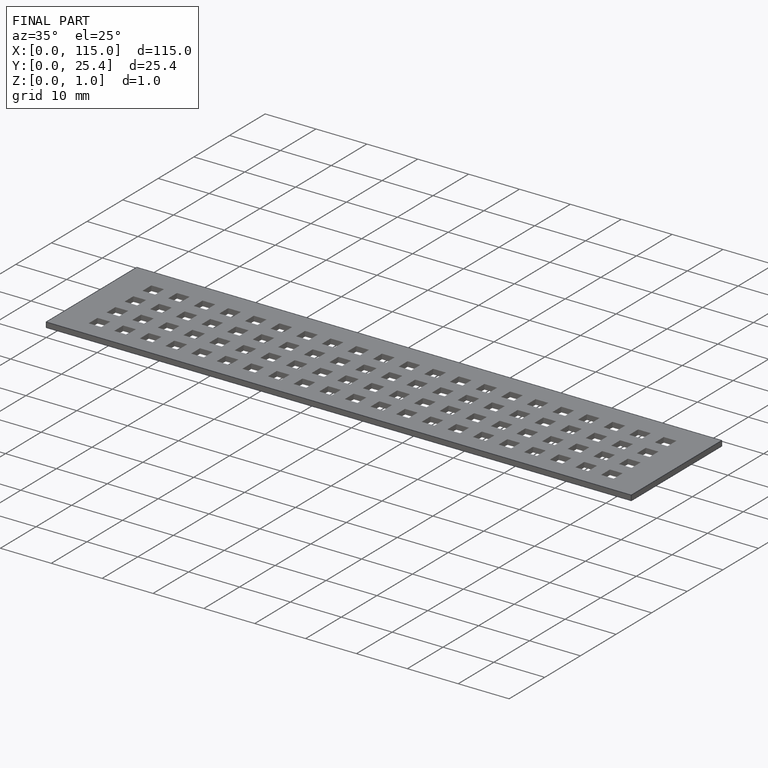
[diagram: finished part — iso view with bounding-box wireframe]
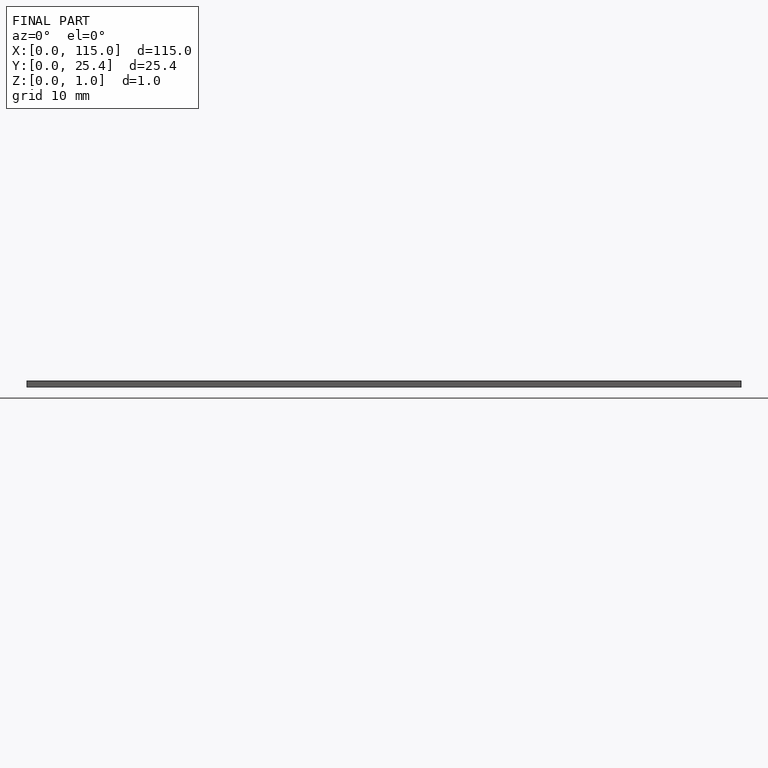
[diagram: finished part — front view with bounding-box wireframe]
